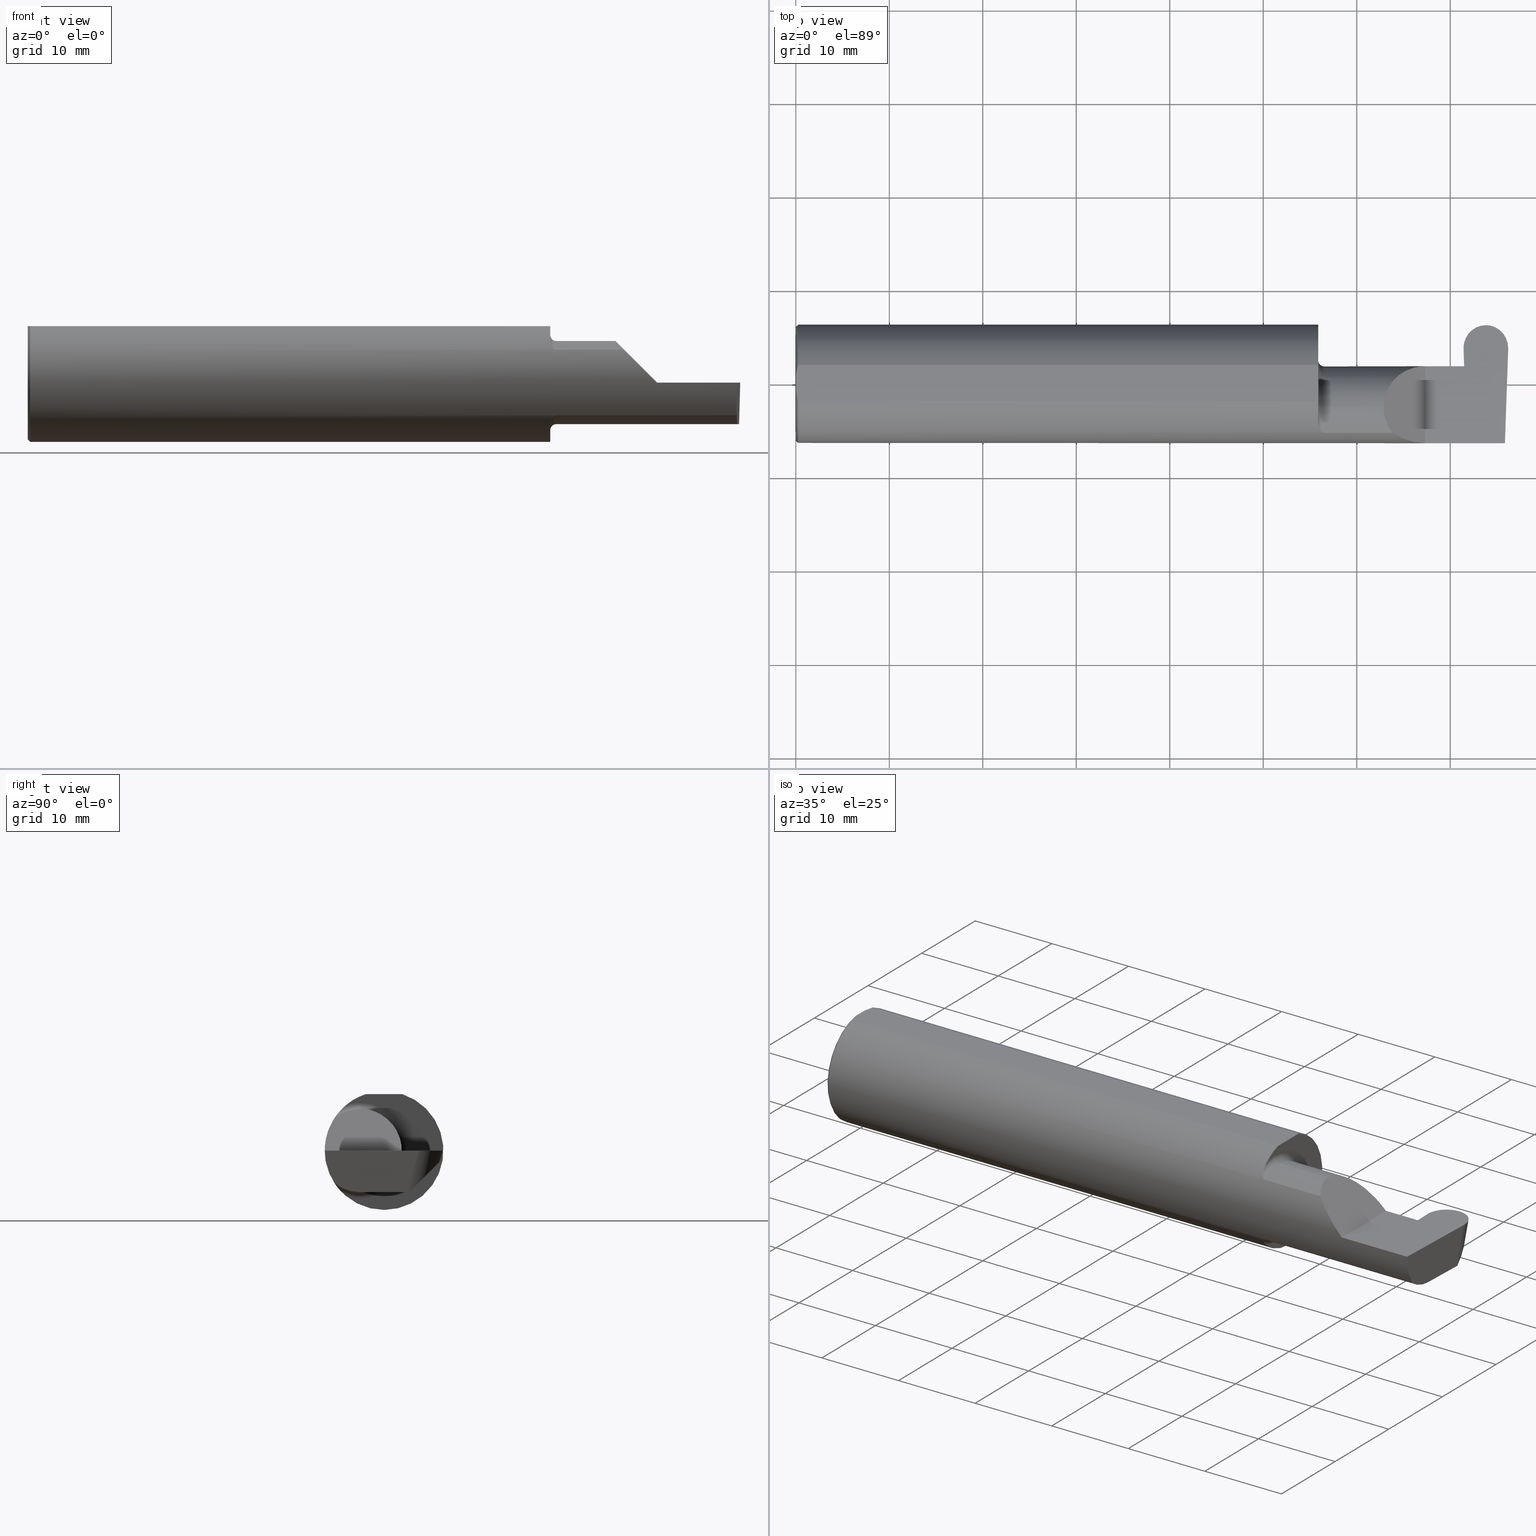
[diagram: canonical four-view strip — front | top / right | iso, engineering-drawing reading convention]
A machine part, canonical four-view strip (front | top / right | iso — engineering-drawing reading convention). The complete STEP part file that produces these views, byte-faithful:
ISO-10303-21;
HEADER;
FILE_DESCRIPTION (( 'STEP AP203' ),
    '1' );
FILE_NAME ('222503-GFR187-12.STEP',
    '2024-06-28T19:23:55',
    ( '' ),
    ( '' ),
    'SwSTEP 2.0',
    'SolidWorks 2024',
    '' );
FILE_SCHEMA (( 'CONFIG_CONTROL_DESIGN' ));
ENDSEC;

DATA;
#1 = ORIENTED_EDGE ( 'NONE', *, *, #147, .T. ) ;
#2 = CARTESIAN_POINT ( 'NONE',  ( 2.962893989228886138, 0.2471500000000001196, -6.982753567311735255E-18 ) ) ;
#3 = VERTEX_POINT ( 'NONE', #136 ) ;
#4 = VECTOR ( 'NONE', #398, 39.37007874015748854 ) ;
#5 = VECTOR ( 'NONE', #337, 39.37007874015748143 ) ;
#6 = VERTEX_POINT ( 'NONE', #245 ) ;
#7 = DIRECTION ( 'NONE',  ( -0.000000000000000000, 1.000000000000000000, 1.224646799147353207E-16 ) ) ;
#8 = VERTEX_POINT ( 'NONE', #56 ) ;
#9 = CARTESIAN_POINT ( 'NONE',  ( 2.995191146414767136, 0.1058243371481696476, -0.1750000000000001277 ) ) ;
#10 = EDGE_CURVE ( 'NONE', #150, #681, #128, .T. ) ;
#11 = CARTESIAN_POINT ( 'NONE',  ( 0.000000000000000000, 0.000000000000000000, 0.000000000000000000 ) ) ;
#12 = CARTESIAN_POINT ( 'NONE',  ( 2.225000000000000089, -0.1008500000000000368, 0.000000000000000000 ) ) ;
#13 = ORIENTED_EDGE ( 'NONE', *, *, #652, .F. ) ;
#14 = APPLICATION_CONTEXT ( 'configuration controlled 3d designs of mechanical parts and assemblies' ) ;
#15 = ADVANCED_FACE ( 'NONE', ( #750 ), #118, .F. ) ;
#16 = DIRECTION ( 'NONE',  ( 1.000000000000000000, 0.000000000000000000, 0.000000000000000000 ) ) ;
#17 = CARTESIAN_POINT ( 'NONE',  ( 0.000000000000000000, 0.2498499999999998500, 0.2378499999999998671 ) ) ;
#18 = ORIENTED_EDGE ( 'NONE', *, *, #184, .F. ) ;
#19 = DIRECTION ( 'NONE',  ( -1.000000000000000000, -0.000000000000000000, -0.000000000000000000 ) ) ;
#20 = CARTESIAN_POINT ( 'NONE',  ( 2.511704467739031887, -0.2080850024789288877, 0.1382955322609669413 ) ) ;
#21 = LINE ( 'NONE', #281, #155 ) ;
#22 = AXIS2_PLACEMENT_3D ( 'NONE', #440, #457, #271 ) ;
#23 = PRODUCT_DEFINITION ( 'UNKNOWN', '', #52, #629 ) ;
#24 = ORIENTED_EDGE ( 'NONE', *, *, #229, .F. ) ;
#25 = CC_DESIGN_APPROVAL ( #716, ( #105 ) ) ;
#26 = DIRECTION ( 'NONE',  ( 0.000000000000000000, 0.9659258262890682012, -0.2588190451025210725 ) ) ;
#27 = CARTESIAN_POINT ( 'NONE',  ( -0.002039370078740339320, 0.1058243371481696476, -0.1750000000000001277 ) ) ;
#28 = CARTESIAN_POINT ( 'NONE',  ( 2.816493473585234053, 0.1058243371481696476, -0.1750000000000001277 ) ) ;
#29 = ORIENTED_EDGE ( 'NONE', *, *, #774, .T. ) ;
#30 = EDGE_CURVE ( 'NONE', #6, #499, #134, .T. ) ;
#31 = PLANE ( 'NONE',  #194 ) ;
#32 = CARTESIAN_POINT ( 'NONE',  ( 2.814490853840988738, 0.07404339472834124691, -0.006107411922953761250 ) ) ;
#33 = DIRECTION ( 'NONE',  ( 0.000000000000000000, 0.000000000000000000, 1.000000000000000000 ) ) ;
#34 = B_SPLINE_CURVE_WITH_KNOTS ( 'NONE', 3,
 ( #173, #301, #112, #745 ),
 .UNSPECIFIED., .F., .F.,
 ( 4, 4 ),
 ( 0.01593449416844770414, 0.01712021724825603733 ),
 .UNSPECIFIED. ) ;
#35 = EDGE_LOOP ( 'NONE', ( #618, #506, #206, #770 ) ) ;
#36 = DIRECTION ( 'NONE',  ( -0.7071067811865439090, 0.000000000000000000, -0.7071067811865511255 ) ) ;
#37 = CARTESIAN_POINT ( 'NONE',  ( 2.904576945698209567, 0.2276591781451734187, -0.07274073744348660830 ) ) ;
#38 = EDGE_LOOP ( 'NONE', ( #669, #323, #77, #786 ) ) ;
#39 = VECTOR ( 'NONE', #93, 39.37007874015748143 ) ;
#40 =( BOUNDED_CURVE ( )  B_SPLINE_CURVE ( 3, ( #784, #666, #772, #32 ),
 .UNSPECIFIED., .F., .F. ) 
 B_SPLINE_CURVE_WITH_KNOTS ( ( 4, 4 ),
 ( 3.159045946109736214, 4.694935687864654206 ),
 .UNSPECIFIED. ) 
 CURVE ( )  GEOMETRIC_REPRESENTATION_ITEM ( )  RATIONAL_B_SPLINE_CURVE ( ( 1.000000000000000000, 0.8128932002257887035, 0.8128932002257887035, 1.000000000000000000 ) ) 
 REPRESENTATION_ITEM ( '' )  );
#41 = AXIS2_PLACEMENT_3D ( 'NONE', #98, #289, #731 ) ;
#42 = EDGE_CURVE ( 'NONE', #433, #574, #50, .T. ) ;
#43 = FACE_OUTER_BOUND ( 'NONE', #804, .T. ) ;
#44 = ORIENTED_EDGE ( 'NONE', *, *, #549, .F. ) ;
#45 =( CONVERSION_BASED_UNIT ( 'INCH', #363 ) LENGTH_UNIT ( ) NAMED_UNIT ( #63 ) );
#46 = EDGE_CURVE ( 'NONE', #448, #178, #739, .T. ) ;
#47 = ORIENTED_EDGE ( 'NONE', *, *, #335, .T. ) ;
#48 = DIRECTION ( 'NONE',  ( -0.03489949670249512664, -0.9993908270190959842, 0.000000000000000000 ) ) ;
#49 = APPROVAL ( #166, 'UNSPECIFIED' ) ;
#50 = CIRCLE ( 'NONE', #813, 0.1750000000000000167 ) ;
#51 = VECTOR ( 'NONE', #525, 39.37007874015748143 ) ;
#52 = PRODUCT_DEFINITION_FORMATION_WITH_SPECIFIED_SOURCE ( 'ANY', '', #170, .NOT_KNOWN. ) ;
#53 = DIRECTION ( 'NONE',  ( 0.000000000000000000, 0.000000000000000000, -1.000000000000000000 ) ) ;
#54 = VERTEX_POINT ( 'NONE', #388 ) ;
#55 = FACE_OUTER_BOUND ( 'NONE', #600, .T. ) ;
#56 = CARTESIAN_POINT ( 'NONE',  ( 2.905842309999999706, 0.2348220781727736184, -0.04600225897539471365 ) ) ;
#57 = ORIENTED_EDGE ( 'NONE', *, *, #73, .T. ) ;
#58 = VECTOR ( 'NONE', #221, 39.37007874015748143 ) ;
#59 = APPROVAL_ROLE ( '' ) ;
#60 = ADVANCED_FACE ( 'NONE', ( #639 ), #579, .T. ) ;
#61 = DIRECTION ( 'NONE',  ( 0.000000000000000000, 0.000000000000000000, 1.000000000000000000 ) ) ;
#62 = CARTESIAN_POINT ( 'NONE',  ( 2.200000000000000178, -0.1008500000000000091, 0.000000000000000000 ) ) ;
#63 = DIMENSIONAL_EXPONENTS ( 1.000000000000000000, 0.000000000000000000, 0.000000000000000000, 0.000000000000000000, 0.000000000000000000, 0.000000000000000000, 0.000000000000000000 ) ;
#64 = EDGE_LOOP ( 'NONE', ( #351, #57, #678, #29 ) ) ;
#65 = CARTESIAN_POINT ( 'NONE',  ( 0.009999999999999856226, -0.07650098038587520299, 0.2378499999999998671 ) ) ;
#66 = CARTESIAN_POINT ( 'NONE',  ( 2.200000000000000178, 0.07650098038587520299, 0.2378499999999998671 ) ) ;
#67 = EDGE_LOOP ( 'NONE', ( #200, #318, #704, #120, #701, #733 ) ) ;
#68 = B_SPLINE_CURVE_WITH_KNOTS ( 'NONE', 3,
 ( #534, #74, #391, #203, #396, #348, #767, #783, #334, #142, #529, #455, #86, #588 ),
 .UNSPECIFIED., .F., .F.,
 ( 4, 2, 2, 2, 2, 2, 4 ),
 ( 0.0003834465838148164922, 0.0008781406165086602222, 0.001372834649202503898, 0.001867528681896347791, 0.002114875698243273532, 0.002238549206416744208, 0.002362222714590215319 ),
 .UNSPECIFIED. ) ;
#69 = PERSON_AND_ORGANIZATION ( #562, #461 ) ;
#70 = CARTESIAN_POINT ( 'NONE',  ( -0.002039370078740339320, 0.2471499999999999808, 0.000000000000000000 ) ) ;
#71 = CARTESIAN_POINT ( 'NONE',  ( 0.009999999999999856226, 0.07650098038587520299, 0.2378499999999998671 ) ) ;
#72 = ORIENTED_EDGE ( 'NONE', *, *, #199, .F. ) ;
#73 = EDGE_CURVE ( 'NONE', #188, #95, #571, .T. ) ;
#74 = CARTESIAN_POINT ( 'NONE',  ( 2.199999999999999734, -0.1665641037263009272, 0.1863429692936361681 ) ) ;
#75 = AXIS2_PLACEMENT_3D ( 'NONE', #781, #472, #33 ) ;
#76 = CARTESIAN_POINT ( 'NONE',  ( 2.848790630771113275, 0.2471500000000001751, 1.845438088445658575E-17 ) ) ;
#77 = ORIENTED_EDGE ( 'NONE', *, *, #121, .T. ) ;
#78 = EDGE_CURVE ( 'NONE', #808, #375, #443, .T. ) ;
#79 = CARTESIAN_POINT ( 'NONE',  ( 0.009999999999999856226, 0.000000000000000000, 0.000000000000000000 ) ) ;
#80 = LINE ( 'NONE', #17, #5 ) ;
#81 = VERTEX_POINT ( 'NONE', #585 ) ;
#82 = CARTESIAN_POINT ( 'NONE',  ( 2.811836707554793424, 0.1469935636673020407, 0.000000000000000000 ) ) ;
#83 = DIRECTION ( 'NONE',  ( 0.000000000000000000, 0.000000000000000000, -1.000000000000000000 ) ) ;
#84 = FACE_OUTER_BOUND ( 'NONE', #424, .T. ) ;
#85 = ORIENTED_EDGE ( 'NONE', *, *, #422, .T. ) ;
#86 = CARTESIAN_POINT ( 'NONE',  ( 2.223329956043142097, -0.2080850024798589493, 0.1382955322595675884 ) ) ;
#87 = CARTESIAN_POINT ( 'NONE',  ( 0.000000000000000000, 0.000000000000000000, 0.000000000000000000 ) ) ;
#88 = CARTESIAN_POINT ( 'NONE',  ( 2.816451678931664482, 0.1039173297714279937, -0.1750000000000001554 ) ) ;
#89 = EDGE_CURVE ( 'NONE', #387, #6, #660, .T. ) ;
#90 = AXIS2_PLACEMENT_3D ( 'NONE', #540, #531, #159 ) ;
#91 = ORIENTED_EDGE ( 'NONE', *, *, #42, .T. ) ;
#92 = DIRECTION ( 'NONE',  ( 0.02590004391968260891, 0.2587322210431824421, 0.9656017944882975268 ) ) ;
#93 = DIRECTION ( 'NONE',  ( 1.000000000000000000, -0.000000000000000000, -0.000000000000000000 ) ) ;
#94 = DIRECTION ( 'NONE',  ( 0.000000000000000000, 0.000000000000000000, 1.000000000000000000 ) ) ;
#95 = VERTEX_POINT ( 'NONE', #143 ) ;
#96 = CARTESIAN_POINT ( 'NONE',  ( 2.985989829834099218, -0.2498499999999999888, 0.000000000000000000 ) ) ;
#97 = CARTESIAN_POINT ( 'NONE',  ( 2.200000000000000178, -0.1008500000000000091, -0.1999999999999999833 ) ) ;
#98 = CARTESIAN_POINT ( 'NONE',  ( 2.811741978320692059, 0.1497062540083303195, 0.000000000000000000 ) ) ;
#99 = ORIENTED_EDGE ( 'NONE', *, *, #314, .F. ) ;
#100 = ADVANCED_FACE ( 'NONE', ( #530 ), #656, .F. ) ;
#101 = EDGE_CURVE ( 'NONE', #714, #220, #456, .T. ) ;
#102 = CARTESIAN_POINT ( 'NONE',  ( 2.208176740666625726, -0.1972027065478072771, -0.1535263573771914747 ) ) ;
#103 = ORIENTED_EDGE ( 'NONE', *, *, #573, .F. ) ;
#104 = VECTOR ( 'NONE', #251, 39.37007874015748143 ) ;
#105 = SECURITY_CLASSIFICATION ( '', '', #254 ) ;
#106 = PLANE ( 'NONE',  #776 ) ;
#107 = CARTESIAN_POINT ( 'NONE',  ( 2.214302603425052141, -0.2041009206016212441, -0.1441313430770040926 ) ) ;
#108 = CARTESIAN_POINT ( 'NONE',  ( 3.501298404146671484, 0.2498499999999998500, 0.2378499999999998671 ) ) ;
#109 = CARTESIAN_POINT ( 'NONE',  ( 2.206147634408388569, -0.1932733126899460752, -0.1584637047788198805 ) ) ;
#110 = ORIENTED_EDGE ( 'NONE', *, *, #822, .F. ) ;
#111 = PLANE ( 'NONE',  #115 ) ;
#112 = CARTESIAN_POINT ( 'NONE',  ( 0.005466242398876384675, 0.06169385855649840017, 0.2378499999999998671 ) ) ;
#113 = PLANE ( 'NONE',  #814 ) ;
#114 = ADVANCED_FACE ( 'NONE', ( #780 ), #631, .T. ) ;
#115 = AXIS2_PLACEMENT_3D ( 'NONE', #415, #809, #48 ) ;
#116 = VERTEX_POINT ( 'NONE', #403 ) ;
#117 = CARTESIAN_POINT ( 'NONE',  ( 0.000000000000000000, 0.000000000000000000, 0.000000000000000000 ) ) ;
#118 = PLANE ( 'NONE',  #381 ) ;
#119 = DIRECTION ( 'NONE',  ( 0.000000000000000000, 0.000000000000000000, 1.000000000000000000 ) ) ;
#120 = ORIENTED_EDGE ( 'NONE', *, *, #298, .F. ) ;
#121 = EDGE_CURVE ( 'NONE', #418, #95, #610, .T. ) ;
#122 = CARTESIAN_POINT ( 'NONE',  ( 0.005459900170181723050, -0.06167314502012866823, 0.2378499999999998671 ) ) ;
#123 = FACE_OUTER_BOUND ( 'NONE', #720, .T. ) ;
#124 = ORIENTED_EDGE ( 'NONE', *, *, #147, .F. ) ;
#125 = VECTOR ( 'NONE', #757, 39.37007874015748143 ) ;
#126 = LINE ( 'NONE', #193, #671 ) ;
#127 = AXIS2_PLACEMENT_3D ( 'NONE', #146, #597, #771 ) ;
#128 = B_SPLINE_CURVE_WITH_KNOTS ( 'NONE', 3,
 ( #65, #122, #690, #636 ),
 .UNSPECIFIED., .F., .F.,
 ( 4, 4 ),
 ( 0.01317593029100230795, 0.01435802289191462008 ),
 .UNSPECIFIED. ) ;
#129 = B_SPLINE_CURVE_WITH_KNOTS ( 'NONE', 3,
 ( #313, #560, #758, #394 ),
 .UNSPECIFIED., .F., .F.,
 ( 4, 4 ),
 ( 0.000000000000000000, 1.000000000000000000 ),
 .UNSPECIFIED. ) ;
#130 = ORIENTED_EDGE ( 'NONE', *, *, #46, .F. ) ;
#131 = CARTESIAN_POINT ( 'NONE',  ( 2.905156571574672331, 0.2471499999999999808, 0.000000000000000000 ) ) ;
#132 = EDGE_LOOP ( 'NONE', ( #268, #464, #164, #541, #272, #226, #99, #124, #296 ) ) ;
#133 = APPROVAL ( #495, 'UNSPECIFIED' ) ;
#134 = LINE ( 'NONE', #259, #305 ) ;
#135 = DIRECTION ( 'NONE',  ( 0.000000000000000000, 0.000000000000000000, 1.000000000000000000 ) ) ;
#136 = CARTESIAN_POINT ( 'NONE',  ( 2.905156571574672331, 0.2471499999999999808, 0.000000000000000000 ) ) ;
#137 = CARTESIAN_POINT ( 'NONE',  ( 2.999847912445206877, 0.1469935636673019019, 0.000000000000000000 ) ) ;
#138 = VECTOR ( 'NONE', #700, 39.37007874015748143 ) ;
#139 = DIRECTION ( 'NONE',  ( -0.000000000000000000, 1.000000000000000000, -0.000000000000000000 ) ) ;
#140 = CARTESIAN_POINT ( 'NONE',  ( 2.225000000000000089, -0.1008500000000000091, 0.000000000000000000 ) ) ;
#141 = EDGE_LOOP ( 'NONE', ( #18, #437, #532, #604 ) ) ;
#142 = CARTESIAN_POINT ( 'NONE',  ( 2.217647060162628581, -0.2062109266231181848, 0.1410799729252291412 ) ) ;
#143 = CARTESIAN_POINT ( 'NONE',  ( 2.225000000000000089, -0.1008500000000000368, 0.1750000000000000167 ) ) ;
#144 = CYLINDRICAL_SURFACE ( 'NONE', #319, 0.09399999999999998634 ) ;
#145 = ORIENTED_EDGE ( 'NONE', *, *, #229, .T. ) ;
#146 = CARTESIAN_POINT ( 'NONE',  ( 2.818543965966616494, -2.751416465448401016, -0.1810926276730670248 ) ) ;
#147 = EDGE_CURVE ( 'NONE', #383, #276, #598, .T. ) ;
#148 = DIRECTION ( 'NONE',  ( -1.000000000000000000, 0.000000000000000000, 1.224646799147351975E-16 ) ) ;
#149 = CARTESIAN_POINT ( 'NONE',  ( 2.814380460850576249, 0.07414999999999977165, 0.000000000000000000 ) ) ;
#150 = VERTEX_POINT ( 'NONE', #462 ) ;
#151 = CARTESIAN_POINT ( 'NONE',  ( 2.959374149763076556, 0.2343807619371274797, -0.04644357521104084535 ) ) ;
#152 = VECTOR ( 'NONE', #139, 39.37007874015748143 ) ;
#153 = CARTESIAN_POINT ( 'NONE',  ( 2.200000000000000178, 0.000000000000000000, 0.000000000000000000 ) ) ;
#154 = CARTESIAN_POINT ( 'NONE',  ( 2.218863362722770294, -0.2068301641248770362, -0.1401678546132360537 ) ) ;
#155 = VECTOR ( 'NONE', #468, 39.37007874015748143 ) ;
#156 = VERTEX_POINT ( 'NONE', #280 ) ;
#157 = CARTESIAN_POINT ( 'NONE',  ( 3.402190948718818664, -0.1008500000000001340, -0.1750000000000000722 ) ) ;
#158 = CARTESIAN_POINT ( 'NONE',  ( 2.995191146414767136, 0.1058243371481696476, -0.1750000000000001277 ) ) ;
#159 = DIRECTION ( 'NONE',  ( 0.000000000000000000, 0.000000000000000000, -1.000000000000000000 ) ) ;
#160 = ORIENTED_EDGE ( 'NONE', *, *, #641, .T. ) ;
#161 = EDGE_CURVE ( 'NONE', #150, #54, #262, .T. ) ;
#162 = DIRECTION ( 'NONE',  ( 1.000000000000000000, -0.000000000000000000, -0.000000000000000000 ) ) ;
#163 = APPLICATION_PROTOCOL_DEFINITION ( 'international standard', 'config_control_design', 1994, #14 ) ;
#164 = ORIENTED_EDGE ( 'NONE', *, *, #78, .F. ) ;
#165 = PLANE ( 'NONE',  #207 ) ;
#166 = APPROVAL_STATUS ( 'not_yet_approved' ) ;
#167 = AXIS2_PLACEMENT_3D ( 'NONE', #502, #633, #61 ) ;
#168 = VECTOR ( 'NONE', #599, 39.37007874015748854 ) ;
#169 =( BOUNDED_CURVE ( )  B_SPLINE_CURVE ( 3, ( #353, #751, #605, #687 ),
 .UNSPECIFIED., .F., .F. ) 
 B_SPLINE_CURVE_WITH_KNOTS ( ( 4, 4 ),
 ( 4.586414956270678189, 4.645220385064936508 ),
 .UNSPECIFIED. ) 
 CURVE ( )  GEOMETRIC_REPRESENTATION_ITEM ( )  RATIONAL_B_SPLINE_CURVE ( ( 1.000000000000000000, 0.9997118475557109640, 0.9997118475557109640, 1.000000000000000000 ) ) 
 REPRESENTATION_ITEM ( '' )  );
#170 = PRODUCT ( '222503-GFR187-12', '222503-GFR187-12', '', ( #232 ) ) ;
#171 = DATE_AND_TIME ( #484, #249 ) ;
#172 = CARTESIAN_POINT ( 'NONE',  ( 2.650000000000000355, 0.07414999999999999369, 9.797174393178813824E-17 ) ) ;
#173 = CARTESIAN_POINT ( 'NONE',  ( 0.000000000000000000, 0.03090954545120574992, 0.2378499999999998671 ) ) ;
#174 = COORDINATED_UNIVERSAL_TIME_OFFSET ( 8, 0, .BEHIND. ) ;
#175 = VERTEX_POINT ( 'NONE', #594 ) ;
#176 = CARTESIAN_POINT ( 'NONE',  ( -0.002039370078740339320, 0.2348243371481683328, -0.04599999999999999922 ) ) ;
#177 = DATE_AND_TIME ( #746, #360 ) ;
#178 = VERTEX_POINT ( 'NONE', #20 ) ;
#179 = CARTESIAN_POINT ( 'NONE',  ( 2.200000000000000178, -0.1008500000000000368, 0.1999999999999999833 ) ) ;
#180 = AXIS2_PLACEMENT_3D ( 'NONE', #214, #341, #730 ) ;
#181 =( GEOMETRIC_REPRESENTATION_CONTEXT ( 3 ) GLOBAL_UNCERTAINTY_ASSIGNED_CONTEXT ( ( #382 ) ) GLOBAL_UNIT_ASSIGNED_CONTEXT ( ( #45, #309, #429 ) ) REPRESENTATION_CONTEXT ( 'NONE', 'WORKASPACE' ) );
#182 = LOCAL_TIME ( 12, 23, 55.00000000000000000, #575 ) ;
#183 = ORIENTED_EDGE ( 'NONE', *, *, #556, .F. ) ;
#184 = EDGE_CURVE ( 'NONE', #116, #681, #791, .T. ) ;
#185 = SHAPE_DEFINITION_REPRESENTATION ( #238, #587 ) ;
#186 = EDGE_LOOP ( 'NONE', ( #72, #285, #811, #324, #624, #160, #706, #450 ) ) ;
#187 = FACE_OUTER_BOUND ( 'NONE', #537, .T. ) ;
#188 = VERTEX_POINT ( 'NONE', #602 ) ;
#189 = DIRECTION ( 'NONE',  ( 1.000000000000000000, -0.000000000000000000, -0.000000000000000000 ) ) ;
#190 = ORIENTED_EDGE ( 'NONE', *, *, #199, .T. ) ;
#191 = CYLINDRICAL_SURFACE ( 'NONE', #683, 0.2498499999999999888 ) ;
#192 = ORIENTED_EDGE ( 'NONE', *, *, #470, .T. ) ;
#193 = CARTESIAN_POINT ( 'NONE',  ( 0.000000000000000000, 0.000000000000000000, -0.2398500000000001742 ) ) ;
#194 = AXIS2_PLACEMENT_3D ( 'NONE', #738, #287, #53 ) ;
#195 = VERTEX_POINT ( 'NONE', #283 ) ;
#196 = DIRECTION ( 'NONE',  ( 0.000000000000000000, 0.000000000000000000, 1.000000000000000000 ) ) ;
#197 = ORIENTED_EDGE ( 'NONE', *, *, #335, .F. ) ;
#198 = DATE_AND_TIME ( #570, #182 ) ;
#199 = EDGE_CURVE ( 'NONE', #387, #499, #40, .T. ) ;
#200 = ORIENTED_EDGE ( 'NONE', *, *, #551, .T. ) ;
#201 = CARTESIAN_POINT ( 'NONE',  ( 2.988640834071240260, -0.08640851177310861220, -0.1750000000000000722 ) ) ;
#202 = VERTEX_POINT ( 'NONE', #97 ) ;
#203 = CARTESIAN_POINT ( 'NONE',  ( 2.201849548162864156, -0.1805300287242673496, 0.1728462070311780341 ) ) ;
#204 = DIRECTION ( 'NONE',  ( 0.000000000000000000, 0.000000000000000000, -1.000000000000000000 ) ) ;
#205 = CARTESIAN_POINT ( 'NONE',  ( 2.200000000000000178, -0.1616050818046604054, -0.1905487340154980447 ) ) ;
#206 = ORIENTED_EDGE ( 'NONE', *, *, #340, .T. ) ;
#207 = AXIS2_PLACEMENT_3D ( 'NONE', #607, #299, #423 ) ;
#208 = AXIS2_PLACEMENT_3D ( 'NONE', #329, #516, #508 ) ;
#209 = DIRECTION ( 'NONE',  ( -0.03489949670249513358, -0.9993908270190959842, 0.000000000000000000 ) ) ;
#210 = LINE ( 'NONE', #546, #278 ) ;
#211 = ORIENTED_EDGE ( 'NONE', *, *, #822, .T. ) ;
#212 = EDGE_CURVE ( 'NONE', #448, #454, #535, .T. ) ;
#213 = CYLINDRICAL_SURFACE ( 'NONE', #544, 0.1750000000000000444 ) ;
#214 = CARTESIAN_POINT ( 'NONE',  ( 0.009999999999999856226, 0.000000000000000000, 0.000000000000000000 ) ) ;
#215 = CARTESIAN_POINT ( 'NONE',  ( 2.200000000000000178, -0.07650098038587527238, 0.2378499999999998671 ) ) ;
#216 = ORIENTED_EDGE ( 'NONE', *, *, #303, .T. ) ;
#217 = CARTESIAN_POINT ( 'NONE',  ( 2.487690731615565642, -0.1771157075472508391, 0.1623092683844331863 ) ) ;
#218 = CARTESIAN_POINT ( 'NONE',  ( 2.650000000000000355, -0.2500000000000000555, 4.286263797015729199E-17 ) ) ;
#219 = DIRECTION ( 'NONE',  ( 0.000000000000000000, 0.9659258262890682012, -0.2588190451025210725 ) ) ;
#220 = VERTEX_POINT ( 'NONE', #158 ) ;
#221 = DIRECTION ( 'NONE',  ( -1.000000000000000000, -0.000000000000000000, -0.000000000000000000 ) ) ;
#222 = EDGE_CURVE ( 'NONE', #375, #156, #711, .T. ) ;
#223 = CIRCLE ( 'NONE', #670, 0.2498499999999999888 ) ;
#224 = DIRECTION ( 'NONE',  ( 0.000000000000000000, 0.000000000000000000, -1.000000000000000000 ) ) ;
#225 = CONICAL_SURFACE ( 'NONE', #612, 0.2398500000000001742, 0.7853981633974466137 ) ;
#226 = ORIENTED_EDGE ( 'NONE', *, *, #212, .F. ) ;
#227 =( BOUNDED_CURVE ( )  B_SPLINE_CURVE ( 3, ( #137, #695, #2, #260 ),
 .UNSPECIFIED., .F., .F. ) 
 B_SPLINE_CURVE_WITH_KNOTS ( ( 4, 4 ),
 ( 1.637964922114649946, 3.237953570749842580 ),
 .UNSPECIFIED. ) 
 CURVE ( )  GEOMETRIC_REPRESENTATION_ITEM ( )  RATIONAL_B_SPLINE_CURVE ( ( 1.000000000000000000, 0.7978071872141906384, 0.7978071872141906384, 1.000000000000000000 ) ) 
 REPRESENTATION_ITEM ( '' )  );
#228 = CARTESIAN_POINT ( 'NONE',  ( 0.000000000000000000, -0.03090954545120560767, 0.2378499999999998671 ) ) ;
#229 = EDGE_CURVE ( 'NONE', #766, #596, #459, .T. ) ;
#230 = ORIENTED_EDGE ( 'NONE', *, *, #573, .T. ) ;
#231 = EDGE_CURVE ( 'NONE', #499, #808, #273, .T. ) ;
#232 = MECHANICAL_CONTEXT ( 'NONE', #762, 'mechanical' ) ;
#233 = ORIENTED_EDGE ( 'NONE', *, *, #652, .T. ) ;
#234 = FACE_OUTER_BOUND ( 'NONE', #421, .T. ) ;
#235 = CIRCLE ( 'NONE', #295, 0.1999999999999999833 ) ;
#236 = APPROVAL_PERSON_ORGANIZATION ( #803, #133, #491 ) ;
#237 = EDGE_CURVE ( 'NONE', #95, #433, #475, .T. ) ;
#238 = PRODUCT_DEFINITION_SHAPE ( 'NONE', 'NONE',  #23 ) ;
#239 = ORIENTED_EDGE ( 'NONE', *, *, #78, .T. ) ;
#240 = CARTESIAN_POINT ( 'NONE',  ( 2.212579853086618975, -0.2024300470081734638, -0.1464774911482685793 ) ) ;
#241 = DIRECTION ( 'NONE',  ( -1.000000000000000000, -0.000000000000000000, -0.000000000000000000 ) ) ;
#242 = EDGE_CURVE ( 'NONE', #54, #578, #223, .T. ) ;
#243 = APPLICATION_PROTOCOL_DEFINITION ( 'international standard', 'config_control_design', 1994, #762 ) ;
#244 = EDGE_CURVE ( 'NONE', #642, #627, #292, .T. ) ;
#245 = CARTESIAN_POINT ( 'NONE',  ( 2.817543629401487948, 0.07109536363756167876, -0.1750000000000000722 ) ) ;
#246 = CARTESIAN_POINT ( 'NONE',  ( 2.225000000000000089, -0.1008500000000000091, -0.1750000000000000167 ) ) ;
#247 = AXIS2_PLACEMENT_3D ( 'NONE', #87, #349, #204 ) ;
#248 = AXIS2_PLACEMENT_3D ( 'NONE', #176, #430, #623 ) ;
#249 = LOCAL_TIME ( 12, 23, 55.00000000000000000, #797 ) ;
#250 =( BOUNDED_CURVE ( )  B_SPLINE_CURVE ( 3, ( #406, #657, #88, #28 ),
 .UNSPECIFIED., .F., .F. ) 
 B_SPLINE_CURVE_WITH_KNOTS ( ( 4, 4 ),
 ( 1.637964922114649946, 1.696770350908906488 ),
 .UNSPECIFIED. ) 
 CURVE ( )  GEOMETRIC_REPRESENTATION_ITEM ( )  RATIONAL_B_SPLINE_CURVE ( ( 1.000000000000000000, 0.9997118475557110751, 0.9997118475557110751, 1.000000000000000000 ) ) 
 REPRESENTATION_ITEM ( '' )  );
#251 = DIRECTION ( 'NONE',  ( 1.000000000000000000, 0.000000000000000000, 0.000000000000000000 ) ) ;
#252 = ADVANCED_FACE ( 'NONE', ( #43 ), #165, .T. ) ;
#253 = ORIENTED_EDGE ( 'NONE', *, *, #291, .T. ) ;
#254 = SECURITY_CLASSIFICATION_LEVEL ( 'unclassified' ) ;
#255 = CARTESIAN_POINT ( 'NONE',  ( 2.200000000000000178, -0.1008500000000000091, 0.1750000000000000444 ) ) ;
#256 = CARTESIAN_POINT ( 'NONE',  ( 2.824252866266283135, -0.1210320425578235159, -0.1750000000000000722 ) ) ;
#257 = EDGE_LOOP ( 'NONE', ( #44, #306, #91, #338 ) ) ;
#258 = PERSON_AND_ORGANIZATION_ROLE ( 'design_supplier' ) ;
#259 = CARTESIAN_POINT ( 'NONE',  ( 2.814380460850576249, 0.07414999999999977165, 9.645561665750316631E-21 ) ) ;
#260 = CARTESIAN_POINT ( 'NONE',  ( 2.906528048425327526, 0.2471499999999999808, 0.000000000000000000 ) ) ;
#261 = ORIENTED_EDGE ( 'NONE', *, *, #184, .T. ) ;
#262 = CIRCLE ( 'NONE', #180, 0.2498499999999999888 ) ;
#263 = LINE ( 'NONE', #710, #265 ) ;
#264 = EDGE_CURVE ( 'NONE', #387, #433, #293, .T. ) ;
#265 = VECTOR ( 'NONE', #92, 39.37007874015748854 ) ;
#266 = LOCAL_TIME ( 12, 23, 55.00000000000000000, #563 ) ;
#267 = ORIENTED_EDGE ( 'NONE', *, *, #788, .T. ) ;
#268 = ORIENTED_EDGE ( 'NONE', *, *, #291, .F. ) ;
#269 = FACE_OUTER_BOUND ( 'NONE', #507, .T. ) ;
#270 = DIRECTION ( 'NONE',  ( 0.000000000000000000, 0.000000000000000000, -1.000000000000000000 ) ) ;
#271 = DIRECTION ( 'NONE',  ( 0.000000000000000000, -0.01745240643728358451, -0.9998476951563912696 ) ) ;
#272 = ORIENTED_EDGE ( 'NONE', *, *, #641, .F. ) ;
#273 = LINE ( 'NONE', #477, #4 ) ;
#274 = DIRECTION ( 'NONE',  ( 0.000000000000000000, 0.000000000000000000, 1.000000000000000000 ) ) ;
#275 = ADVANCED_FACE ( 'NONE', ( #426 ), #106, .T. ) ;
#276 = VERTEX_POINT ( 'NONE', #615 ) ;
#277 = FACE_OUTER_BOUND ( 'NONE', #186, .T. ) ;
#278 = VECTOR ( 'NONE', #649, 39.37007874015748854 ) ;
#279 = APPROVAL_PERSON_ORGANIZATION ( #557, #49, #302 ) ;
#280 = CARTESIAN_POINT ( 'NONE',  ( 2.816530679450678587, 0.1001024549918554940, -0.1750000000000001277 ) ) ;
#281 = CARTESIAN_POINT ( 'NONE',  ( 2.200000000000000178, 0.07404339472834127467, -0.006107411922952042140 ) ) ;
#282 = EDGE_LOOP ( 'NONE', ( #458, #233, #261 ) ) ;
#283 = CARTESIAN_POINT ( 'NONE',  ( 2.985032866776429650, -0.2080850024789289987, -0.1382955322609668025 ) ) ;
#284 = CARTESIAN_POINT ( 'NONE',  ( 2.225000000000000089, -0.2080850024789288599, -0.1382955322609668025 ) ) ;
#285 = ORIENTED_EDGE ( 'NONE', *, *, #264, .T. ) ;
#286 = CC_DESIGN_DATE_AND_TIME_ASSIGNMENT ( #304, #554, ( #23 ) ) ;
#287 = DIRECTION ( 'NONE',  ( 1.000000000000000000, 0.000000000000000000, 0.000000000000000000 ) ) ;
#288 = CARTESIAN_POINT ( 'NONE',  ( 2.225000000000000089, -0.1008500000000000091, 0.000000000000000000 ) ) ;
#289 = DIRECTION ( 'NONE',  ( 0.9992386149554828290, 0.03489418134010620343, 0.01745240643728358451 ) ) ;
#290 = VERTEX_POINT ( 'NONE', #794 ) ;
#291 = EDGE_CURVE ( 'NONE', #3, #175, #734, .T. ) ;
#292 = CIRCLE ( 'NONE', #561, 0.2498499999999999888 ) ;
#293 = LINE ( 'NONE', #673, #317 ) ;
#294 = CARTESIAN_POINT ( 'NONE',  ( 2.547487373415290968, 0.07415000000000000757, 0.1025126265847084162 ) ) ;
#295 = AXIS2_PLACEMENT_3D ( 'NONE', #682, #241, #665 ) ;
#296 = ORIENTED_EDGE ( 'NONE', *, *, #584, .T. ) ;
#297 = CC_DESIGN_APPROVAL ( #49, ( #23 ) ) ;
#298 = EDGE_CURVE ( 'NONE', #609, #578, #34, .T. ) ;
#299 = DIRECTION ( 'NONE',  ( 1.000000000000000000, 0.000000000000000000, 0.000000000000000000 ) ) ;
#300 = CARTESIAN_POINT ( 'NONE',  ( 2.852310470236923301, 0.2343807619371273965, -0.04644357521104090780 ) ) ;
#301 = CARTESIAN_POINT ( 'NONE',  ( 0.002005502345409059580, 0.04647171987093979412, 0.2378499999999998671 ) ) ;
#302 = APPROVAL_ROLE ( '' ) ;
#303 = EDGE_CURVE ( 'NONE', #81, #808, #419, .T. ) ;
#304 = DATE_AND_TIME ( #807, #685 ) ;
#305 = VECTOR ( 'NONE', #566, 39.37007874015748854 ) ;
#306 = ORIENTED_EDGE ( 'NONE', *, *, #564, .T. ) ;
#307 = CARTESIAN_POINT ( 'NONE',  ( 2.814490853840988738, 0.07404339472834124691, -0.006107411922953761250 ) ) ;
#308 = AXIS2_PLACEMENT_3D ( 'NONE', #536, #399, #595 ) ;
#309 =( NAMED_UNIT ( * ) PLANE_ANGLE_UNIT ( ) SI_UNIT ( $, .RADIAN. ) );
#310 = ORIENTED_EDGE ( 'NONE', *, *, #244, .T. ) ;
#311 = CARTESIAN_POINT ( 'NONE',  ( 2.905842309999999706, 0.2348220781727736184, -0.04600225897539471365 ) ) ;
#312 = EDGE_CURVE ( 'NONE', #116, #54, #126, .T. ) ;
#313 = CARTESIAN_POINT ( 'NONE',  ( 2.803232562456845933, 0.07404339472834127467, -0.006107411922952479290 ) ) ;
#314 = EDGE_CURVE ( 'NONE', #276, #448, #702, .T. ) ;
#315 = DIRECTION ( 'NONE',  ( 0.000000000000000000, -0.9659258262890682012, 0.2588190451025209615 ) ) ;
#316 = CARTESIAN_POINT ( 'NONE',  ( 2.905842309999999706, 0.2402997171823388067, -0.02556560352172764644 ) ) ;
#317 = VECTOR ( 'NONE', #621, 39.37007874015748143 ) ;
#318 = ORIENTED_EDGE ( 'NONE', *, *, #533, .T. ) ;
#319 = AXIS2_PLACEMENT_3D ( 'NONE', #346, #350, #219 ) ;
#320 = PERSON_AND_ORGANIZATION_ROLE ( 'creator' ) ;
#321 = ORIENTED_EDGE ( 'NONE', *, *, #549, .T. ) ;
#322 = DIRECTION ( 'NONE',  ( 0.000000000000000000, 0.000000000000000000, 1.000000000000000000 ) ) ;
#323 = ORIENTED_EDGE ( 'NONE', *, *, #485, .F. ) ;
#324 = ORIENTED_EDGE ( 'NONE', *, *, #73, .F. ) ;
#325 = LINE ( 'NONE', #453, #138 ) ;
#326 = EDGE_CURVE ( 'NONE', #178, #188, #374, .T. ) ;
#327 = ORIENTED_EDGE ( 'NONE', *, *, #626, .F. ) ;
#328 = CARTESIAN_POINT ( 'NONE',  ( 2.511704467739031887, -0.2080850024789288877, 0.1382955322609669413 ) ) ;
#329 = CARTESIAN_POINT ( 'NONE',  ( 3.402190948718818664, -0.1008500000000001340, -0.1750000000000000722 ) ) ;
#330 = ORIENTED_EDGE ( 'NONE', *, *, #42, .F. ) ;
#331 = CARTESIAN_POINT ( 'NONE',  ( 2.803232562456845933, 0.07404339472834127467, -0.006107411922952479290 ) ) ;
#332 = APPROVAL_PERSON_ORGANIZATION ( #761, #716, #59 ) ;
#333 = CARTESIAN_POINT ( 'NONE',  ( 2.200000000000000178, -0.1616050818046604054, 0.1905487340154980447 ) ) ;
#334 = CARTESIAN_POINT ( 'NONE',  ( 2.214343523383979662, -0.2041337200786083050, 0.1440846171672512943 ) ) ;
#335 = EDGE_CURVE ( 'NONE', #820, #383, #263, .T. ) ;
#336 = DIRECTION ( 'NONE',  ( 1.000000000000000000, 0.000000000000000000, 0.000000000000000000 ) ) ;
#337 = DIRECTION ( 'NONE',  ( -0.000000000000000000, 1.000000000000000000, -0.000000000000000000 ) ) ;
#338 = ORIENTED_EDGE ( 'NONE', *, *, #810, .T. ) ;
#339 = CARTESIAN_POINT ( 'NONE',  ( 2.905842309999999706, 0.2348220781727736184, -0.04600225897539471365 ) ) ;
#340 = EDGE_CURVE ( 'NONE', #596, #347, #68, .T. ) ;
#341 = DIRECTION ( 'NONE',  ( 1.000000000000000000, 0.000000000000000000, 0.000000000000000000 ) ) ;
#342 = CARTESIAN_POINT ( 'NONE',  ( 2.650000000000000355, 0.07414999999999999369, 9.797174393178813824E-17 ) ) ;
#343 = ORIENTED_EDGE ( 'NONE', *, *, #30, .F. ) ;
#344 = CIRCLE ( 'NONE', #90, 0.2398500000000001742 ) ;
#345 = DIRECTION ( 'NONE',  ( 0.000000000000000000, -1.000000000000000000, 0.000000000000000000 ) ) ;
#346 = CARTESIAN_POINT ( 'NONE',  ( 2.904576945698209567, 0.1368621504740009653, -0.04841174720384962965 ) ) ;
#347 = VERTEX_POINT ( 'NONE', #583 ) ;
#348 = CARTESIAN_POINT ( 'NONE',  ( 2.206159563508734767, -0.1933019864360848439, 0.1584298865564832959 ) ) ;
#349 = DIRECTION ( 'NONE',  ( 1.000000000000000000, 0.000000000000000000, 0.000000000000000000 ) ) ;
#350 = DIRECTION ( 'NONE',  ( -0.02590004391968260544, -0.2587322210431824976, -0.9656017944882975268 ) ) ;
#351 = ORIENTED_EDGE ( 'NONE', *, *, #326, .T. ) ;
#352 = EDGE_CURVE ( 'NONE', #8, #220, #823, .T. ) ;
#353 = CARTESIAN_POINT ( 'NONE',  ( 2.995191146414767136, 0.1058243371481696476, -0.1750000000000001277 ) ) ;
#354 = MANIFOLD_SOLID_BREP ( 'Radii', #486 ) ;
#355 = FACE_OUTER_BOUND ( 'NONE', #407, .T. ) ;
#356 = ORIENTED_EDGE ( 'NONE', *, *, #485, .T. ) ;
#357 = VECTOR ( 'NONE', #489, 39.37007874015748143 ) ;
#358 = DIRECTION ( 'NONE',  ( 1.000000000000000000, 0.000000000000000000, 0.000000000000000000 ) ) ;
#359 = VERTEX_POINT ( 'NONE', #331 ) ;
#360 = LOCAL_TIME ( 12, 23, 55.00000000000000000, #174 ) ;
#361 = ADVANCED_FACE ( 'NONE', ( #269 ), #518, .F. ) ;
#362 = DIRECTION ( 'NONE',  ( 0.000000000000000000, 0.000000000000000000, 1.000000000000000000 ) ) ;
#363 = LENGTH_MEASURE_WITH_UNIT ( LENGTH_MEASURE( 0.02539999999999999897 ), #622 );
#364 = CARTESIAN_POINT ( 'NONE',  ( 2.201385488563270432, -0.1808287530430326140, -0.1728790649396287904 ) ) ;
#365 = LINE ( 'NONE', #787, #58 ) ;
#366 = CARTESIAN_POINT ( 'NONE',  ( 2.200000000000000178, -0.1616050818046604054, -0.1905487340154980447 ) ) ;
#367 = ORIENTED_EDGE ( 'NONE', *, *, #806, .F. ) ;
#368 = FACE_OUTER_BOUND ( 'NONE', #282, .T. ) ;
#369 = CC_DESIGN_DATE_AND_TIME_ASSIGNMENT ( #378, #498, ( #105 ) ) ;
#370 = ADVANCED_FACE ( 'NONE', ( #523 ), #651, .T. ) ;
#371 = CARTESIAN_POINT ( 'NONE',  ( 2.905842309999999706, 0.2348220781727736184, -0.04600225897539471365 ) ) ;
#372 = ORIENTED_EDGE ( 'NONE', *, *, #526, .T. ) ;
#373 = CARTESIAN_POINT ( 'NONE',  ( 2.200000000000000178, -0.1008500000000000091, 0.000000000000000000 ) ) ;
#374 =( BOUNDED_CURVE ( )  B_SPLINE_CURVE ( 3, ( #775, #217, #647, #408 ),
 .UNSPECIFIED., .F., .F. ) 
 B_SPLINE_CURVE_WITH_KNOTS ( ( 4, 4 ),
 ( 5.623622464215682015, 6.283185307179586232 ),
 .UNSPECIFIED. ) 
 CURVE ( )  GEOMETRIC_REPRESENTATION_ITEM ( )  RATIONAL_B_SPLINE_CURVE ( ( 1.000000000000000000, 0.9640754331822832812, 0.9640754331822832812, 1.000000000000000000 ) ) 
 REPRESENTATION_ITEM ( '' )  );
#375 = VERTEX_POINT ( 'NONE', #82 ) ;
#376 = PLANE ( 'NONE',  #22 ) ;
#377 = ORIENTED_EDGE ( 'NONE', *, *, #326, .F. ) ;
#378 = DATE_AND_TIME ( #693, #266 ) ;
#379 = CARTESIAN_POINT ( 'NONE',  ( 2.650000000000000355, -0.2498499999999999610, 4.286263797015729199E-17 ) ) ;
#380 = PLANE ( 'NONE',  #208 ) ;
#381 = AXIS2_PLACEMENT_3D ( 'NONE', #70, #315, #439 ) ;
#382 = UNCERTAINTY_MEASURE_WITH_UNIT (LENGTH_MEASURE( 1.000000000000000082E-05 ), #45, 'distance_accuracy_value', 'NONE');
#383 = VERTEX_POINT ( 'NONE', #593 ) ;
#384 = AXIS2_PLACEMENT_3D ( 'NONE', #62, #769, #322 ) ;
#385 = ADVANCED_FACE ( 'NONE', ( #277 ), #213, .T. ) ;
#386 = ORIENTED_EDGE ( 'NONE', *, *, #244, .F. ) ;
#387 = VERTEX_POINT ( 'NONE', #812 ) ;
#388 = CARTESIAN_POINT ( 'NONE',  ( 0.009999999999999856226, 0.000000000000000000, -0.2498499999999999888 ) ) ;
#389 = DIRECTION ( 'NONE',  ( -0.03489949670249350294, 0.9993908270190959842, -1.222058880457094394E-16 ) ) ;
#390 = EDGE_LOOP ( 'NONE', ( #377, #130, #663, #686 ) ) ;
#391 = CARTESIAN_POINT ( 'NONE',  ( 2.200367168219774072, -0.1713400252854603567, 0.1819601557798506408 ) ) ;
#392 = APPROVAL_STATUS ( 'not_yet_approved' ) ;
#393 = CARTESIAN_POINT ( 'NONE',  ( 2.225000000000000089, -0.1008500000000000091, 0.000000000000000000 ) ) ;
#394 = CARTESIAN_POINT ( 'NONE',  ( 2.803339167728504666, 0.07414999999999977165, 0.000000000000000000 ) ) ;
#395 = CC_DESIGN_PERSON_AND_ORGANIZATION_ASSIGNMENT ( #674, #680, ( #170 ) ) ;
#396 = CARTESIAN_POINT ( 'NONE',  ( 2.202968662030529323, -0.1849684355203378150, 0.1680843977756268370 ) ) ;
#397 = AXIS2_PLACEMENT_3D ( 'NONE', #548, #420, #358 ) ;
#398 = DIRECTION ( 'NONE',  ( -0.01806954526206908107, 0.01744955702544859211, 0.9996844524616943506 ) ) ;
#399 = DIRECTION ( 'NONE',  ( -1.000000000000000000, -0.000000000000000000, -0.000000000000000000 ) ) ;
#400 = ORIENTED_EDGE ( 'NONE', *, *, #526, .F. ) ;
#401 = DIRECTION ( 'NONE',  ( 0.02590004391968218217, -0.2587322210431824976, -0.9656017944882975268 ) ) ;
#402 = ADVANCED_FACE ( 'NONE', ( #474 ), #113, .F. ) ;
#403 = CARTESIAN_POINT ( 'NONE',  ( 0.000000000000000000, 0.000000000000000000, -0.2398500000000001742 ) ) ;
#404 = CARTESIAN_POINT ( 'NONE',  ( 2.474999999999998757, 0.001662626584708354381, 0.1750000000000000167 ) ) ;
#405 = ORIENTED_EDGE ( 'NONE', *, *, #483, .F. ) ;
#406 = CARTESIAN_POINT ( 'NONE',  ( 2.816530679450678587, 0.1001024549918554940, -0.1750000000000001277 ) ) ;
#407 = EDGE_LOOP ( 'NONE', ( #759, #441, #510, #509, #735, #197 ) ) ;
#408 = CARTESIAN_POINT ( 'NONE',  ( 2.474999999999998757, -0.1008500000000000091, 0.1750000000000000444 ) ) ;
#409 = AXIS2_PLACEMENT_3D ( 'NONE', #153, #411, #224 ) ;
#410 = TOROIDAL_SURFACE ( 'NONE', #308, 0.1999999999999999833, 0.02499999999999994588 ) ;
#411 = DIRECTION ( 'NONE',  ( 1.000000000000000000, 0.000000000000000000, 0.000000000000000000 ) ) ;
#412 = PLANE ( 'NONE',  #41 ) ;
#413 = ADVANCED_FACE ( 'NONE', ( #368 ), #31, .F. ) ;
#414 = ORIENTED_EDGE ( 'NONE', *, *, #314, .T. ) ;
#415 = CARTESIAN_POINT ( 'NONE',  ( 2.999942641679308242, 0.1497062540083303195, 0.000000000000000000 ) ) ;
#416 = DIRECTION ( 'NONE',  ( -0.03489949670249350294, 0.9993908270190959842, -0.000000000000000000 ) ) ;
#417 = CYLINDRICAL_SURFACE ( 'NONE', #446, 0.1750000000000000444 ) ;
#418 = VERTEX_POINT ( 'NONE', #179 ) ;
#419 = LINE ( 'NONE', #493, #792 ) ;
#420 = DIRECTION ( 'NONE',  ( 0.000000000000000000, 0.000000000000000000, 1.000000000000000000 ) ) ;
#421 = EDGE_LOOP ( 'NONE', ( #511, #211, #547 ) ) ;
#422 = EDGE_CURVE ( 'NONE', #195, #574, #538, .T. ) ;
#423 = DIRECTION ( 'NONE',  ( 0.000000000000000000, 0.000000000000000000, -1.000000000000000000 ) ) ;
#424 = EDGE_LOOP ( 'NONE', ( #799, #479, #400, #85, #330 ) ) ;
#425 =( BOUNDED_CURVE ( )  B_SPLINE_CURVE ( 3, ( #550, #616, #300, #371 ),
 .UNSPECIFIED., .F., .F. ) 
 B_SPLINE_CURVE_WITH_KNOTS ( ( 4, 4 ),
 ( 1.615361716680477233, 3.150715186437225146 ),
 .UNSPECIFIED. ) 
 CURVE ( )  GEOMETRIC_REPRESENTATION_ITEM ( )  RATIONAL_B_SPLINE_CURVE ( ( 1.000000000000000000, 0.8130173582623207995, 0.8130173582623207995, 1.000000000000000000 ) ) 
 REPRESENTATION_ITEM ( '' )  );
#426 = FACE_OUTER_BOUND ( 'NONE', #67, .T. ) ;
#427 = APPROVAL_DATE_TIME ( #171, #49 ) ;
#428 = DIRECTION ( 'NONE',  ( -1.000000000000000000, -0.000000000000000000, -0.000000000000000000 ) ) ;
#429 =( NAMED_UNIT ( * ) SI_UNIT ( $, .STERADIAN. ) SOLID_ANGLE_UNIT ( ) );
#430 = DIRECTION ( 'NONE',  ( 0.000000000000000000, -0.7071067811865514585, 0.7071067811865435759 ) ) ;
#431 = CARTESIAN_POINT ( 'NONE',  ( 2.217611663768900065, -0.2061921161193829566, -0.1411075319999377797 ) ) ;
#432 = AXIS2_PLACEMENT_3D ( 'NONE', #288, #539, #648 ) ;
#433 = VERTEX_POINT ( 'NONE', #246 ) ;
#434 = CARTESIAN_POINT ( 'NONE',  ( 2.985124127500504265, -0.2498499999999999610, -0.04956584089959700790 ) ) ;
#435 = EDGE_CURVE ( 'NONE', #581, #8, #460, .T. ) ;
#436 = AXIS2_PLACEMENT_3D ( 'NONE', #373, #729, #119 ) ;
#437 = ORIENTED_EDGE ( 'NONE', *, *, #312, .T. ) ;
#438 = CARTESIAN_POINT ( 'NONE',  ( 2.905842309999999706, 0.2366484540499849132, -0.03919024582579856697 ) ) ;
#439 = DIRECTION ( 'NONE',  ( 0.000000000000000000, -0.2588190451025209615, -0.9659258262890682012 ) ) ;
#440 = CARTESIAN_POINT ( 'NONE',  ( 2.814380460850576249, 0.07414999999999977165, 0.000000000000000000 ) ) ;
#441 = ORIENTED_EDGE ( 'NONE', *, *, #352, .F. ) ;
#442 = EDGE_CURVE ( 'NONE', #627, #578, #365, .T. ) ;
#443 = LINE ( 'NONE', #699, #611 ) ;
#444 = DIRECTION ( 'NONE',  ( -1.000000000000000000, -0.000000000000000000, -0.000000000000000000 ) ) ;
#445 = ORIENTED_EDGE ( 'NONE', *, *, #46, .T. ) ;
#446 = AXIS2_PLACEMENT_3D ( 'NONE', #608, #481, #94 ) ;
#447 = DIRECTION ( 'NONE',  ( 0.7071067811865486830, 0.000000000000000000, -0.7071067811865462405 ) ) ;
#448 = VERTEX_POINT ( 'NONE', #679 ) ;
#449 = CARTESIAN_POINT ( 'NONE',  ( 0.000000000000000000, 0.000000000000000000, 0.000000000000000000 ) ) ;
#450 = ORIENTED_EDGE ( 'NONE', *, *, #788, .F. ) ;
#451 = CC_DESIGN_PERSON_AND_ORGANIZATION_ASSIGNMENT ( #635, #320, ( #52 ) ) ;
#452 = EDGE_LOOP ( 'NONE', ( #591, #13, #515, #796 ) ) ;
#453 = CARTESIAN_POINT ( 'NONE',  ( 2.200000000000000178, 0.2498499999999998500, 0.2378499999999998671 ) ) ;
#454 = VERTEX_POINT ( 'NONE', #172 ) ;
#455 = CARTESIAN_POINT ( 'NONE',  ( 2.221718393013768722, -0.2077830475237241181, 0.1387513848711937059 ) ) ;
#456 = LINE ( 'NONE', #27, #39 ) ;
#457 = DIRECTION ( 'NONE',  ( 0.000000000000000000, -0.9998476951563912696, 0.01745240643728358451 ) ) ;
#458 = ORIENTED_EDGE ( 'NONE', *, *, #756, .T. ) ;
#459 = CIRCLE ( 'NONE', #409, 0.2498499999999999888 ) ;
#460 =( BOUNDED_CURVE ( )  B_SPLINE_CURVE ( 3, ( #500, #601, #438, #311 ),
 .UNSPECIFIED., .F., .T. ) 
 B_SPLINE_CURVE_WITH_KNOTS ( ( 4, 4 ),
 ( 4.712388980384687009, 4.718218730468869637 ),
 .UNSPECIFIED. ) 
 CURVE ( )  GEOMETRIC_REPRESENTATION_ITEM ( )  RATIONAL_B_SPLINE_CURVE ( ( 1.000000000000000000, 0.9999971678365016103, 0.9999971678365016103, 1.000000000000000000 ) ) 
 REPRESENTATION_ITEM ( '' )  );
#461 = ORGANIZATION ( 'UNSPECIFIED', 'UNSPECIFIED', '' ) ;
#462 = CARTESIAN_POINT ( 'NONE',  ( 0.009999999999999856226, -0.07650098038587520299, 0.2378499999999998671 ) ) ;
#463 = FACE_OUTER_BOUND ( 'NONE', #38, .T. ) ;
#464 = ORIENTED_EDGE ( 'NONE', *, *, #556, .T. ) ;
#465 = EDGE_CURVE ( 'NONE', #596, #418, #501, .T. ) ;
#466 = CARTESIAN_POINT ( 'NONE',  ( 2.200000000000000178, -0.1008500000000000091, 0.000000000000000000 ) ) ;
#467 = DIRECTION ( 'NONE',  ( -1.000000000000000000, -0.000000000000000000, -0.000000000000000000 ) ) ;
#468 = DIRECTION ( 'NONE',  ( -1.000000000000000000, -0.000000000000000000, -0.000000000000000000 ) ) ;
#469 = EDGE_LOOP ( 'NONE', ( #755, #707, #253 ) ) ;
#470 = EDGE_CURVE ( 'NONE', #290, #387, #559, .T. ) ;
#471 = CARTESIAN_POINT ( 'NONE',  ( 2.811818465794154509, 0.1471757923639231969, 0.0006800867543872120887 ) ) ;
#472 = DIRECTION ( 'NONE',  ( -1.000000000000000000, -0.000000000000000000, -0.000000000000000000 ) ) ;
#473 = ORIENTED_EDGE ( 'NONE', *, *, #806, .T. ) ;
#474 = FACE_OUTER_BOUND ( 'NONE', #390, .T. ) ;
#475 = CIRCLE ( 'NONE', #432, 0.1750000000000000167 ) ;
#476 = VECTOR ( 'NONE', #162, 39.37007874015748143 ) ;
#477 = CARTESIAN_POINT ( 'NONE',  ( 2.814380460850576249, 0.07414999999999977165, 9.645561665750316631E-21 ) ) ;
#478 = LINE ( 'NONE', #590, #51 ) ;
#479 = ORIENTED_EDGE ( 'NONE', *, *, #470, .F. ) ;
#480 =( BOUNDED_CURVE ( )  B_SPLINE_CURVE ( 3, ( #131, #76, #503, #708 ),
 .UNSPECIFIED., .F., .F. ) 
 B_SPLINE_CURVE_WITH_KNOTS ( ( 4, 4 ),
 ( 3.045231736429744540, 4.645220385064936508 ),
 .UNSPECIFIED. ) 
 CURVE ( )  GEOMETRIC_REPRESENTATION_ITEM ( )  RATIONAL_B_SPLINE_CURVE ( ( 1.000000000000000000, 0.7978071872141907495, 0.7978071872141907495, 1.000000000000000000 ) ) 
 REPRESENTATION_ITEM ( '' )  );
#481 = DIRECTION ( 'NONE',  ( -1.000000000000000000, -0.000000000000000000, -0.000000000000000000 ) ) ;
#482 = ADVANCED_FACE ( 'NONE', ( #619 ), #111, .F. ) ;
#483 = EDGE_CURVE ( 'NONE', #195, #276, #718, .T. ) ;
#484 = CALENDAR_DATE ( 2024, 28, 6 ) ;
#485 = EDGE_CURVE ( 'NONE', #418, #202, #235, .T. ) ;
#486 = CLOSED_SHELL ( 'NONE', ( #385, #60, #630, #703, #114, #545, #519, #402, #100, #275, #413, #504, #752, #689, #252, #606, #15, #505, #664, #482, #361, #688, #370 ) ) ;
#487 = VECTOR ( 'NONE', #637, 39.37007874015748854 ) ;
#488 = ORIENTED_EDGE ( 'NONE', *, *, #222, .F. ) ;
#489 = DIRECTION ( 'NONE',  ( -1.000000000000000000, -0.000000000000000000, -0.000000000000000000 ) ) ;
#490 = DIRECTION ( 'NONE',  ( 1.000000000000000000, 0.000000000000000000, -0.000000000000000000 ) ) ;
#491 = APPROVAL_ROLE ( '' ) ;
#492 = DIRECTION ( 'NONE',  ( 1.000000000000000000, 0.000000000000000000, 0.000000000000000000 ) ) ;
#493 = CARTESIAN_POINT ( 'NONE',  ( 2.814380460850576249, 0.07414999999999977165, 0.000000000000000000 ) ) ;
#494 = EDGE_CURVE ( 'NONE', #220, #820, #169, .T. ) ;
#495 = APPROVAL_STATUS ( 'not_yet_approved' ) ;
#496 = ORIENTED_EDGE ( 'NONE', *, *, #483, .T. ) ;
#497 = DIRECTION ( 'NONE',  ( 0.000000000000000000, 0.000000000000000000, 1.000000000000000000 ) ) ;
#498 = DATE_TIME_ROLE ( 'classification_date' ) ;
#499 = VERTEX_POINT ( 'NONE', #307 ) ;
#500 = CARTESIAN_POINT ( 'NONE',  ( 2.905842309999999706, 0.2402997171823388067, -0.02556560352172764644 ) ) ;
#501 = CIRCLE ( 'NONE', #436, 0.1999999999999999833 ) ;
#502 = CARTESIAN_POINT ( 'NONE',  ( 2.200000000000000178, -0.1008500000000000091, 0.000000000000000000 ) ) ;
#503 = CARTESIAN_POINT ( 'NONE',  ( 2.809800481473789358, 0.2053034494642216323, 2.322929703798115353E-17 ) ) ;
#504 = ADVANCED_FACE ( 'NONE', ( #542 ), #225, .T. ) ;
#505 = ADVANCED_FACE ( 'NONE', ( #234 ), #625, .F. ) ;
#506 = ORIENTED_EDGE ( 'NONE', *, *, #465, .F. ) ;
#507 = EDGE_LOOP ( 'NONE', ( #190, #343, #558 ) ) ;
#508 = DIRECTION ( 'NONE',  ( 0.000000000000000000, -1.000000000000000000, 1.223176342469858371E-16 ) ) ;
#509 = ORIENTED_EDGE ( 'NONE', *, *, #697, .F. ) ;
#510 = ORIENTED_EDGE ( 'NONE', *, *, #435, .F. ) ;
#511 = ORIENTED_EDGE ( 'NONE', *, *, #101, .F. ) ;
#512 = TOROIDAL_SURFACE ( 'NONE', #75, 0.1999999999999999833, 0.02499999999999994588 ) ;
#513 = CARTESIAN_POINT ( 'NONE',  ( 2.996006756888764500, 0.1814922884362608346, -0.09933204871190806640 ) ) ;
#514 = EDGE_CURVE ( 'NONE', #359, #81, #129, .T. ) ;
#515 = ORIENTED_EDGE ( 'NONE', *, *, #298, .T. ) ;
#516 = DIRECTION ( 'NONE',  ( -0.000000000000000000, 1.223176342469858371E-16, 1.000000000000000000 ) ) ;
#517 = ORIENTED_EDGE ( 'NONE', *, *, #161, .T. ) ;
#518 = PLANE ( 'NONE',  #127 ) ;
#519 = ADVANCED_FACE ( 'NONE', ( #55 ), #191, .T. ) ;
#520 = DIRECTION ( 'NONE',  ( -1.224646799147351975E-16, 0.000000000000000000, -1.000000000000000000 ) ) ;
#521 = CARTESIAN_POINT ( 'NONE',  ( 0.000000000000000000, 0.03090954545120574992, 0.2378499999999998671 ) ) ;
#522 = ORIENTED_EDGE ( 'NONE', *, *, #774, .F. ) ;
#523 = FACE_OUTER_BOUND ( 'NONE', #723, .T. ) ;
#524 = CARTESIAN_POINT ( 'NONE',  ( 2.200000000000000178, 0.000000000000000000, 0.000000000000000000 ) ) ;
#525 = DIRECTION ( 'NONE',  ( 1.000000000000000000, 0.000000000000000000, 0.000000000000000000 ) ) ;
#526 = EDGE_CURVE ( 'NONE', #195, #290, #672, .T. ) ;
#527 = ORIENTED_EDGE ( 'NONE', *, *, #810, .F. ) ;
#528 = CIRCLE ( 'NONE', #565, 0.02499999999999993894 ) ;
#529 = CARTESIAN_POINT ( 'NONE',  ( 2.218876997637614590, -0.2068363917296599797, 0.1401586554522229744 ) ) ;
#530 = FACE_OUTER_BOUND ( 'NONE', #132, .T. ) ;
#531 = DIRECTION ( 'NONE',  ( -1.000000000000000000, -0.000000000000000000, -0.000000000000000000 ) ) ;
#532 = ORIENTED_EDGE ( 'NONE', *, *, #161, .F. ) ;
#533 = EDGE_CURVE ( 'NONE', #766, #627, #325, .T. ) ;
#534 = CARTESIAN_POINT ( 'NONE',  ( 2.200000000000000178, -0.1616050818046604054, 0.1905487340154980447 ) ) ;
#535 = LINE ( 'NONE', #218, #152 ) ;
#536 = CARTESIAN_POINT ( 'NONE',  ( 2.225000000000000089, -0.1008500000000000368, 0.000000000000000000 ) ) ;
#537 = EDGE_LOOP ( 'NONE', ( #800, #267, #790, #216 ) ) ;
#538 = LINE ( 'NONE', #793, #715 ) ;
#539 = DIRECTION ( 'NONE',  ( -1.000000000000000000, -0.000000000000000000, -0.000000000000000000 ) ) ;
#540 = CARTESIAN_POINT ( 'NONE',  ( 0.000000000000000000, 0.000000000000000000, 0.000000000000000000 ) ) ;
#541 = ORIENTED_EDGE ( 'NONE', *, *, #303, .F. ) ;
#542 = FACE_OUTER_BOUND ( 'NONE', #452, .T. ) ;
#543 = AXIS2_PLACEMENT_3D ( 'NONE', #653, #345, #83 ) ;
#544 = AXIS2_PLACEMENT_3D ( 'NONE', #466, #721, #497 ) ;
#545 = ADVANCED_FACE ( 'NONE', ( #187 ), #376, .F. ) ;
#546 = CARTESIAN_POINT ( 'NONE',  ( 2.903206388851060638, 0.2666316313472230637, 0.07270643800216300412 ) ) ;
#547 = ORIENTED_EDGE ( 'NONE', *, *, #352, .T. ) ;
#548 = CARTESIAN_POINT ( 'NONE',  ( 0.000000000000000000, 0.000000000000000000, 0.000000000000000000 ) ) ;
#549 = EDGE_CURVE ( 'NONE', #202, #642, #582, .T. ) ;
#550 = CARTESIAN_POINT ( 'NONE',  ( 2.816493473585234053, 0.1058243371481696476, -0.1750000000000001277 ) ) ;
#551 = EDGE_CURVE ( 'NONE', #150, #766, #572, .T. ) ;
#552 = AXIS2_PLACEMENT_3D ( 'NONE', #11, #467, #270 ) ;
#553 = CIRCLE ( 'NONE', #659, 0.1750000000000000167 ) ;
#554 = DATE_TIME_ROLE ( 'creation_date' ) ;
#555 = DIRECTION ( 'NONE',  ( -0.7071067811865511255, 0.000000000000000000, 0.7071067811865439090 ) ) ;
#556 = EDGE_CURVE ( 'NONE', #3, #375, #480, .T. ) ;
#557 = PERSON_AND_ORGANIZATION ( #562, #461 ) ;
#558 = ORIENTED_EDGE ( 'NONE', *, *, #89, .F. ) ;
#559 = LINE ( 'NONE', #157, #357 ) ;
#560 = CARTESIAN_POINT ( 'NONE',  ( 2.803268097547399140, 0.07407892981889410700, -0.004071607948634988795 ) ) ;
#561 = AXIS2_PLACEMENT_3D ( 'NONE', #524, #16, #736 ) ;
#562 = PERSON ( 'UNSPECIFIED', 'UNSPECIFIED', 'UNSPECIFIED', ('UNSPECIFIED'), ('UNSPECIFIED'), ('UNSPECIFIED') ) ;
#563 = COORDINATED_UNIVERSAL_TIME_OFFSET ( 8, 0, .BEHIND. ) ;
#564 = EDGE_CURVE ( 'NONE', #202, #433, #528, .T. ) ;
#565 = AXIS2_PLACEMENT_3D ( 'NONE', #577, #7, #135 ) ;
#566 = DIRECTION ( 'NONE',  ( -0.01806954526206908107, 0.01744955702544859211, 0.9996844524616943506 ) ) ;
#567 = CARTESIAN_POINT ( 'NONE',  ( 2.986768025497130274, -0.1400387324517230747, -0.1750000000000000444 ) ) ;
#568 = CC_DESIGN_SECURITY_CLASSIFICATION ( #105, ( #52 ) ) ;
#569 = ORIENTED_EDGE ( 'NONE', *, *, #340, .F. ) ;
#570 = CALENDAR_DATE ( 2024, 28, 6 ) ;
#571 = LINE ( 'NONE', #255, #125 ) ;
#572 = LINE ( 'NONE', #580, #104 ) ;
#573 = EDGE_CURVE ( 'NONE', #6, #156, #754, .T. ) ;
#574 = VERTEX_POINT ( 'NONE', #645 ) ;
#575 = COORDINATED_UNIVERSAL_TIME_OFFSET ( 8, 0, .BEHIND. ) ;
#576 = ORIENTED_EDGE ( 'NONE', *, *, #494, .T. ) ;
#577 = CARTESIAN_POINT ( 'NONE',  ( 2.225000000000000089, -0.1008500000000000091, -0.1999999999999999833 ) ) ;
#578 = VERTEX_POINT ( 'NONE', #71 ) ;
#579 = CYLINDRICAL_SURFACE ( 'NONE', #167, 0.1750000000000000444 ) ;
#580 = CARTESIAN_POINT ( 'NONE',  ( 0.000000000000000000, -0.07650098038587520299, 0.2378499999999998671 ) ) ;
#581 = VERTEX_POINT ( 'NONE', #316 ) ;
#582 = CIRCLE ( 'NONE', #384, 0.1999999999999999833 ) ;
#583 = CARTESIAN_POINT ( 'NONE',  ( 2.225000000000000089, -0.2080850024789289987, 0.1382955322609667470 ) ) ;
#584 = EDGE_CURVE ( 'NONE', #383, #175, #227, .T. ) ;
#585 = CARTESIAN_POINT ( 'NONE',  ( 2.803339167728504666, 0.07414999999999977165, 0.000000000000000000 ) ) ;
#586 = DIRECTION ( 'NONE',  ( -1.000000000000000000, -0.000000000000000000, -0.000000000000000000 ) ) ;
#587 = ADVANCED_BREP_SHAPE_REPRESENTATION ( '222503-GFR187-12', ( #354, #397 ), #181 ) ;
#588 = CARTESIAN_POINT ( 'NONE',  ( 2.225000000000000089, -0.2080850024789289987, 0.1382955322609667470 ) ) ;
#589 = DIRECTION ( 'NONE',  ( 0.000000000000000000, 0.000000000000000000, -1.000000000000000000 ) ) ;
#590 = CARTESIAN_POINT ( 'NONE',  ( 2.518342309999999529, -0.2080850024789289987, 0.1382955322609668025 ) ) ;
#591 = ORIENTED_EDGE ( 'NONE', *, *, #312, .F. ) ;
#592 =( BOUNDED_CURVE ( )  B_SPLINE_CURVE ( 3, ( #778, #404, #294, #342 ),
 .UNSPECIFIED., .F., .F. ) 
 B_SPLINE_CURVE_WITH_KNOTS ( ( 4, 4 ),
 ( 0.000000000000000000, 1.570796326794896336 ),
 .UNSPECIFIED. ) 
 CURVE ( )  GEOMETRIC_REPRESENTATION_ITEM ( )  RATIONAL_B_SPLINE_CURVE ( ( 1.000000000000000000, 0.8047378541243650485, 0.8047378541243650485, 1.000000000000000000 ) ) 
 REPRESENTATION_ITEM ( '' )  );
#593 = CARTESIAN_POINT ( 'NONE',  ( 2.999847912445206877, 0.1469935636673019019, 0.000000000000000000 ) ) ;
#594 = CARTESIAN_POINT ( 'NONE',  ( 2.906528048425327526, 0.2471499999999999808, 0.000000000000000000 ) ) ;
#595 = DIRECTION ( 'NONE',  ( 0.000000000000000000, 0.000000000000000000, 1.000000000000000000 ) ) ;
#596 = VERTEX_POINT ( 'NONE', #333 ) ;
#597 = DIRECTION ( 'NONE',  ( 0.9998367324388628408, 0.0003153570480505199936, 0.01806679318280377325 ) ) ;
#598 = LINE ( 'NONE', #777, #727 ) ;
#599 = DIRECTION ( 'NONE',  ( -0.02590004391968260891, -0.2587322210431824421, -0.9656017944882975268 ) ) ;
#600 = EDGE_LOOP ( 'NONE', ( #726, #496, #414, #445, #522, #569, #24, #696, #517, #782, #709, #386, #527 ) ) ;
#601 = CARTESIAN_POINT ( 'NONE',  ( 2.905842309999999706, 0.2384743388910442741, -0.03237800804787206721 ) ) ;
#602 = CARTESIAN_POINT ( 'NONE',  ( 2.474999999999998757, -0.1008500000000000091, 0.1750000000000000444 ) ) ;
#603 = LINE ( 'NONE', #37, #168 ) ;
#604 = ORIENTED_EDGE ( 'NONE', *, *, #10, .T. ) ;
#605 = CARTESIAN_POINT ( 'NONE',  ( 2.995220535538503981, 0.1020094859694683359, -0.1750000000000001277 ) ) ;
#606 = ADVANCED_FACE ( 'NONE', ( #123 ), #380, .F. ) ;
#607 = CARTESIAN_POINT ( 'NONE',  ( 2.200000000000000178, 0.2498499999999999333, 0.000000000000000000 ) ) ;
#608 = CARTESIAN_POINT ( 'NONE',  ( 2.200000000000000178, -0.1008500000000000091, 0.000000000000000000 ) ) ;
#609 = VERTEX_POINT ( 'NONE', #521 ) ;
#610 = CIRCLE ( 'NONE', #543, 0.02499999999999993894 ) ;
#611 = VECTOR ( 'NONE', #416, 39.37007874015748854 ) ;
#612 = AXIS2_PLACEMENT_3D ( 'NONE', #117, #492, #743 ) ;
#613 = CARTESIAN_POINT ( 'NONE',  ( 2.200000000000000178, -0.1716188362992555339, -0.1820560320165480472 ) ) ;
#614 = ORIENTED_EDGE ( 'NONE', *, *, #30, .T. ) ;
#615 = CARTESIAN_POINT ( 'NONE',  ( 2.985989829834099218, -0.2498499999999999888, 0.000000000000000000 ) ) ;
#616 = CARTESIAN_POINT ( 'NONE',  ( 2.815677863111235357, 0.1814922884362608069, -0.09933204871190810803 ) ) ;
#617 = COORDINATED_UNIVERSAL_TIME_OFFSET ( 8, 0, .BEHIND. ) ;
#618 = ORIENTED_EDGE ( 'NONE', *, *, #121, .F. ) ;
#619 = FACE_OUTER_BOUND ( 'NONE', #764, .T. ) ;
#620 = AXIS2_PLACEMENT_3D ( 'NONE', #719, #520, #148 ) ;
#621 = DIRECTION ( 'NONE',  ( -1.000000000000000000, -0.000000000000000000, -0.000000000000000000 ) ) ;
#622 =( LENGTH_UNIT ( ) NAMED_UNIT ( * ) SI_UNIT ( $, .METRE. ) );
#623 = DIRECTION ( 'NONE',  ( 0.000000000000000000, -0.7071067811865435759, -0.7071067811865514585 ) ) ;
#624 = ORIENTED_EDGE ( 'NONE', *, *, #747, .T. ) ;
#625 = PLANE ( 'NONE',  #248 ) ;
#626 = EDGE_CURVE ( 'NONE', #820, #290, #634, .T. ) ;
#627 = VERTEX_POINT ( 'NONE', #66 ) ;
#628 = FACE_OUTER_BOUND ( 'NONE', #257, .T. ) ;
#629 = DESIGN_CONTEXT ( 'detailed design', #14, 'design' ) ;
#630 = ADVANCED_FACE ( 'NONE', ( #628 ), #698, .F. ) ;
#631 = CONICAL_SURFACE ( 'NONE', #247, 0.2398500000000001742, 0.7853981633974466137 ) ;
#632 = PERSON_AND_ORGANIZATION ( #562, #461 ) ;
#633 = DIRECTION ( 'NONE',  ( -1.000000000000000000, -0.000000000000000000, -0.000000000000000000 ) ) ;
#634 = LINE ( 'NONE', #201, #487 ) ;
#635 = PERSON_AND_ORGANIZATION ( #562, #461 ) ;
#636 = CARTESIAN_POINT ( 'NONE',  ( 0.000000000000000000, -0.03090954545120560767, 0.2378499999999998671 ) ) ;
#637 = DIRECTION ( 'NONE',  ( -0.03489949670249512664, -0.9993908270190959842, 1.222058880457094394E-16 ) ) ;
#638 = CARTESIAN_POINT ( 'NONE',  ( 4.499279347985562423E-32, -0.2498499999999999610, 3.673940397442054938E-16 ) ) ;
#639 = FACE_OUTER_BOUND ( 'NONE', #64, .T. ) ;
#640 = DIRECTION ( 'NONE',  ( 1.000000000000000000, 0.000000000000000000, 0.000000000000000000 ) ) ;
#641 = EDGE_CURVE ( 'NONE', #454, #81, #773, .T. ) ;
#642 = VERTEX_POINT ( 'NONE', #205 ) ;
#643 = B_SPLINE_CURVE_WITH_KNOTS ( 'NONE', 3,
 ( #284, #785, #725, #154, #431, #107, #240, #102, #109, #364, #613, #366 ),
 .UNSPECIFIED., .F., .F.,
 ( 4, 2, 2, 2, 2, 4 ),
 ( 1.964491429042083594E-07, 0.0001260981470478305614, 0.0002519998449527569430, 0.0005038032407626228792, 0.001007410032382354426, 0.002014623615621823158 ),
 .UNSPECIFIED. ) ;
#644 = DIRECTION ( 'NONE',  ( -1.000000000000000000, -0.000000000000000000, -0.000000000000000000 ) ) ;
#645 = CARTESIAN_POINT ( 'NONE',  ( 2.225000000000000089, -0.2080850024789288599, -0.1382955322609668025 ) ) ;
#646 = AXIS2_PLACEMENT_3D ( 'NONE', #717, #401, #26 ) ;
#647 = CARTESIAN_POINT ( 'NONE',  ( 2.474999999999998757, -0.1400387324517230747, 0.1750000000000000444 ) ) ;
#648 = DIRECTION ( 'NONE',  ( 0.000000000000000000, 0.000000000000000000, 1.000000000000000000 ) ) ;
#649 = DIRECTION ( 'NONE',  ( -0.02590004391968218564, 0.2587322210431824421, 0.9656017944882975268 ) ) ;
#650 = EDGE_LOOP ( 'NONE', ( #239, #675, #103, #614, #819 ) ) ;
#651 = CYLINDRICAL_SURFACE ( 'NONE', #646, 0.09400000000000000022 ) ;
#652 = EDGE_CURVE ( 'NONE', #609, #116, #344, .T. ) ;
#653 = CARTESIAN_POINT ( 'NONE',  ( 2.225000000000000089, -0.1008500000000000368, 0.1999999999999999833 ) ) ;
#654 = CARTESIAN_POINT ( 'NONE',  ( 2.816493473585234053, 0.1058243371481696476, -0.1750000000000001277 ) ) ;
#655 = ORIENTED_EDGE ( 'NONE', *, *, #435, .T. ) ;
#656 = PLANE ( 'NONE',  #620 ) ;
#657 = CARTESIAN_POINT ( 'NONE',  ( 2.816464084461495876, 0.1020094859694684469, -0.1750000000000001554 ) ) ;
#658 = ORIENTED_EDGE ( 'NONE', *, *, #626, .T. ) ;
#659 = AXIS2_PLACEMENT_3D ( 'NONE', #140, #795, #274 ) ;
#660 = LINE ( 'NONE', #789, #801 ) ;
#661 = FACE_OUTER_BOUND ( 'NONE', #35, .T. ) ;
#662 = CC_DESIGN_PERSON_AND_ORGANIZATION_ASSIGNMENT ( #69, #258, ( #52 ) ) ;
#663 = ORIENTED_EDGE ( 'NONE', *, *, #212, .T. ) ;
#664 = ADVANCED_FACE ( 'NONE', ( #667 ), #412, .F. ) ;
#665 = DIRECTION ( 'NONE',  ( 0.000000000000000000, 0.000000000000000000, 1.000000000000000000 ) ) ;
#666 = CARTESIAN_POINT ( 'NONE',  ( 2.817566416972957732, -0.001152430219572287730, -0.1750000000000000722 ) ) ;
#667 = FACE_OUTER_BOUND ( 'NONE', #650, .T. ) ;
#668 = ORIENTED_EDGE ( 'NONE', *, *, #676, .F. ) ;
#669 = ORIENTED_EDGE ( 'NONE', *, *, #564, .F. ) ;
#670 = AXIS2_PLACEMENT_3D ( 'NONE', #79, #336, #589 ) ;
#671 = VECTOR ( 'NONE', #447, 39.37007874015748854 ) ;
#672 =( BOUNDED_CURVE ( )  B_SPLINE_CURVE ( 3, ( #821, #712, #567, #818 ),
 .UNSPECIFIED., .F., .F. ) 
 B_SPLINE_CURVE_WITH_KNOTS ( ( 4, 4 ),
 ( 0.4474640105399657064, 1.107026853503870978 ),
 .UNSPECIFIED. ) 
 CURVE ( )  GEOMETRIC_REPRESENTATION_ITEM ( )  RATIONAL_B_SPLINE_CURVE ( ( 1.000000000000000000, 0.9640754331822831702, 0.9640754331822831702, 1.000000000000000000 ) ) 
 REPRESENTATION_ITEM ( '' )  );
#673 = CARTESIAN_POINT ( 'NONE',  ( 2.200000000000000178, -0.1008499999999999952, -0.1750000000000000444 ) ) ;
#674 = PERSON_AND_ORGANIZATION ( #562, #461 ) ;
#675 = ORIENTED_EDGE ( 'NONE', *, *, #222, .T. ) ;
#676 = EDGE_CURVE ( 'NONE', #581, #3, #210, .T. ) ;
#677 = PERSON_AND_ORGANIZATION ( #562, #461 ) ;
#678 = ORIENTED_EDGE ( 'NONE', *, *, #732, .F. ) ;
#679 = CARTESIAN_POINT ( 'NONE',  ( 2.650000000000000355, -0.2498499999999999610, 4.286263797015729199E-17 ) ) ;
#680 = PERSON_AND_ORGANIZATION_ROLE ( 'design_owner' ) ;
#681 = VERTEX_POINT ( 'NONE', #228 ) ;
#682 = CARTESIAN_POINT ( 'NONE',  ( 2.200000000000000178, -0.1008500000000000091, 0.000000000000000000 ) ) ;
#683 = AXIS2_PLACEMENT_3D ( 'NONE', #449, #444, #705 ) ;
#684 = APPROVAL_DATE_TIME ( #177, #133 ) ;
#685 = LOCAL_TIME ( 12, 23, 55.00000000000000000, #617 ) ;
#686 = ORIENTED_EDGE ( 'NONE', *, *, #747, .F. ) ;
#687 = CARTESIAN_POINT ( 'NONE',  ( 2.995153940549321714, 0.1001024549918553552, -0.1750000000000001277 ) ) ;
#688 = ADVANCED_FACE ( 'NONE', ( #355 ), #144, .T. ) ;
#689 = ADVANCED_FACE ( 'NONE', ( #84 ), #417, .T. ) ;
#690 = CARTESIAN_POINT ( 'NONE',  ( 0.001983148254845701515, -0.04629825796642599717, 0.2378499999999998671 ) ) ;
#691 = CARTESIAN_POINT ( 'NONE',  ( 2.984795792828450089, -0.2355204011147991883, -0.09701513151466764628 ) ) ;
#692 = ORIENTED_EDGE ( 'NONE', *, *, #465, .T. ) ;
#693 = CALENDAR_DATE ( 2024, 28, 6 ) ;
#694 = CARTESIAN_POINT ( 'NONE',  ( 2.552984868485331571, -0.2355204011147991605, 0.09701513151466779894 ) ) ;
#695 = CARTESIAN_POINT ( 'NONE',  ( 3.001884138526210499, 0.2053034494642216323, -1.175766972083629841E-17 ) ) ;
#696 = ORIENTED_EDGE ( 'NONE', *, *, #551, .F. ) ;
#697 = EDGE_CURVE ( 'NONE', #175, #581, #603, .T. ) ;
#698 = TOROIDAL_SURFACE ( 'NONE', #763, 0.1999999999999999833, 0.02499999999999994588 ) ;
#699 = CARTESIAN_POINT ( 'NONE',  ( 2.811741978320692059, 0.1497062540083303195, 0.000000000000000000 ) ) ;
#700 = DIRECTION ( 'NONE',  ( 0.000000000000000000, 1.000000000000000000, 0.000000000000000000 ) ) ;
#701 = ORIENTED_EDGE ( 'NONE', *, *, #756, .F. ) ;
#702 = LINE ( 'NONE', #638, #713 ) ;
#703 = ADVANCED_FACE ( 'NONE', ( #463 ), #512, .F. ) ;
#704 = ORIENTED_EDGE ( 'NONE', *, *, #442, .T. ) ;
#705 = DIRECTION ( 'NONE',  ( 0.000000000000000000, 0.000000000000000000, 1.000000000000000000 ) ) ;
#706 = ORIENTED_EDGE ( 'NONE', *, *, #514, .F. ) ;
#707 = ORIENTED_EDGE ( 'NONE', *, *, #676, .T. ) ;
#708 = CARTESIAN_POINT ( 'NONE',  ( 2.811836707554793424, 0.1469935636673020407, 0.000000000000000000 ) ) ;
#709 = ORIENTED_EDGE ( 'NONE', *, *, #442, .F. ) ;
#710 = CARTESIAN_POINT ( 'NONE',  ( 2.999866154205845792, 0.1471757923639230858, 0.0006800867543872493853 ) ) ;
#711 = LINE ( 'NONE', #471, #760 ) ;
#712 = CARTESIAN_POINT ( 'NONE',  ( 2.985694921565461790, -0.1771157075472508391, -0.1623092683844332140 ) ) ;
#713 = VECTOR ( 'NONE', #19, 39.37007874015748143 ) ;
#714 = VERTEX_POINT ( 'NONE', #654 ) ;
#715 = VECTOR ( 'NONE', #428, 39.37007874015748143 ) ;
#716 = APPROVAL ( #392, 'UNSPECIFIED' ) ;
#717 = CARTESIAN_POINT ( 'NONE',  ( 2.905746895599969459, 0.1504558454098932074, 0.002320612959491867577 ) ) ;
#718 =( BOUNDED_CURVE ( )  B_SPLINE_CURVE ( 3, ( #805, #691, #434, #96 ),
 .UNSPECIFIED., .F., .F. ) 
 B_SPLINE_CURVE_WITH_KNOTS ( ( 4, 4 ),
 ( 6.160376845738953833, 6.746954780470612256 ),
 .UNSPECIFIED. ) 
 CURVE ( )  GEOMETRIC_REPRESENTATION_ITEM ( )  RATIONAL_B_SPLINE_CURVE ( ( 1.000000000000000000, 0.9715321379117538569, 0.9715321379117538569, 1.000000000000000000 ) ) 
 REPRESENTATION_ITEM ( '' )  );
#719 = CARTESIAN_POINT ( 'NONE',  ( 3.000000000000000444, -0.2500000000000000555, 0.000000000000000000 ) ) ;
#720 = EDGE_LOOP ( 'NONE', ( #230, #473, #779, #576, #658, #192, #768 ) ) ;
#721 = DIRECTION ( 'NONE',  ( -1.000000000000000000, -0.000000000000000000, -0.000000000000000000 ) ) ;
#722 = DIRECTION ( 'NONE',  ( -0.0003154085283454421441, 0.9999999502587288980, -1.223178646569383192E-16 ) ) ;
#723 = EDGE_LOOP ( 'NONE', ( #183, #668, #655, #110, #367, #488 ) ) ;
#724 = DIRECTION ( 'NONE',  ( 0.02590004391968217523, -0.2587322210431824421, -0.9656017944882974158 ) ) ;
#725 = CARTESIAN_POINT ( 'NONE',  ( 2.221700027347579098, -0.2077785947292768165, -0.1387580622202825853 ) ) ;
#726 = ORIENTED_EDGE ( 'NONE', *, *, #422, .F. ) ;
#727 = VECTOR ( 'NONE', #209, 39.37007874015748143 ) ;
#728 = VECTOR ( 'NONE', #640, 39.37007874015748143 ) ;
#729 = DIRECTION ( 'NONE',  ( -1.000000000000000000, -0.000000000000000000, -0.000000000000000000 ) ) ;
#730 = DIRECTION ( 'NONE',  ( 0.000000000000000000, 0.000000000000000000, -1.000000000000000000 ) ) ;
#731 = DIRECTION ( 'NONE',  ( -0.03489949670249350294, 0.9993908270190959842, 0.000000000000000000 ) ) ;
#732 = EDGE_CURVE ( 'NONE', #347, #95, #553, .T. ) ;
#733 = ORIENTED_EDGE ( 'NONE', *, *, #10, .F. ) ;
#734 = LINE ( 'NONE', #740, #476 ) ;
#735 = ORIENTED_EDGE ( 'NONE', *, *, #584, .F. ) ;
#736 = DIRECTION ( 'NONE',  ( 0.000000000000000000, 0.000000000000000000, -1.000000000000000000 ) ) ;
#737 = CARTESIAN_POINT ( 'NONE',  ( 2.995153940549321714, 0.1001024549918553552, -0.1750000000000001277 ) ) ;
#738 = CARTESIAN_POINT ( 'NONE',  ( 0.000000000000000000, 0.000000000000000000, 0.000000000000000000 ) ) ;
#739 =( BOUNDED_CURVE ( )  B_SPLINE_CURVE ( 3, ( #379, #753, #694, #328 ),
 .UNSPECIFIED., .F., .F. ) 
 B_SPLINE_CURVE_WITH_KNOTS ( ( 4, 4 ),
 ( 4.712388980384689674, 5.298966915116348986 ),
 .UNSPECIFIED. ) 
 CURVE ( )  GEOMETRIC_REPRESENTATION_ITEM ( )  RATIONAL_B_SPLINE_CURVE ( ( 1.000000000000000000, 0.9715321379117536349, 0.9715321379117536349, 1.000000000000000000 ) ) 
 REPRESENTATION_ITEM ( '' )  );
#740 = CARTESIAN_POINT ( 'NONE',  ( -0.002039370078740339320, 0.2471499999999999808, 0.000000000000000000 ) ) ;
#741 = PERSON_AND_ORGANIZATION_ROLE ( 'creator' ) ;
#742 = ORIENTED_EDGE ( 'NONE', *, *, #533, .F. ) ;
#743 = DIRECTION ( 'NONE',  ( 0.000000000000000000, 0.000000000000000000, -1.000000000000000000 ) ) ;
#744 = PRODUCT_RELATED_PRODUCT_CATEGORY ( 'detail', '', ( #170 ) ) ;
#745 = CARTESIAN_POINT ( 'NONE',  ( 0.009999999999999856226, 0.07650098038587520299, 0.2378499999999998671 ) ) ;
#746 = CALENDAR_DATE ( 2024, 28, 6 ) ;
#747 = EDGE_CURVE ( 'NONE', #188, #454, #592, .T. ) ;
#748 = CARTESIAN_POINT ( 'NONE',  ( 2.650000000000000355, -0.2500000000000000555, 4.286263797015729199E-17 ) ) ;
#749 = CC_DESIGN_APPROVAL ( #133, ( #52 ) ) ;
#750 = FACE_OUTER_BOUND ( 'NONE', #469, .T. ) ;
#751 = CARTESIAN_POINT ( 'NONE',  ( 2.995232941068335375, 0.1039173297714279520, -0.1750000000000001277 ) ) ;
#752 = ADVANCED_FACE ( 'NONE', ( #661 ), #410, .F. ) ;
#753 = CARTESIAN_POINT ( 'NONE',  ( 2.600434159100402987, -0.2498499999999999610, 0.04956584089959713973 ) ) ;
#754 = LINE ( 'NONE', #256, #802 ) ;
#755 = ORIENTED_EDGE ( 'NONE', *, *, #697, .T. ) ;
#756 = EDGE_CURVE ( 'NONE', #681, #609, #80, .T. ) ;
#757 = DIRECTION ( 'NONE',  ( -1.000000000000000000, -0.000000000000000000, -0.000000000000000000 ) ) ;
#758 = CARTESIAN_POINT ( 'NONE',  ( 2.803303632637951459, 0.07411446490944693932, -0.002035803974317494398 ) ) ;
#759 = ORIENTED_EDGE ( 'NONE', *, *, #494, .F. ) ;
#760 = VECTOR ( 'NONE', #724, 39.37007874015748854 ) ;
#761 = PERSON_AND_ORGANIZATION ( #562, #461 ) ;
#762 = APPLICATION_CONTEXT ( 'configuration controlled 3d designs of mechanical parts and assemblies' ) ;
#763 = AXIS2_PLACEMENT_3D ( 'NONE', #12, #586, #196 ) ;
#764 = EDGE_LOOP ( 'NONE', ( #327, #47, #1, #405, #372 ) ) ;
#765 = CARTESIAN_POINT ( 'NONE',  ( 2.200000000000000178, 0.07414999999999999369, 9.797174393178813824E-17 ) ) ;
#766 = VERTEX_POINT ( 'NONE', #215 ) ;
#767 = CARTESIAN_POINT ( 'NONE',  ( 2.208182335268384033, -0.1972192205116130859, 0.1535061413537210928 ) ) ;
#768 = ORIENTED_EDGE ( 'NONE', *, *, #89, .T. ) ;
#769 = DIRECTION ( 'NONE',  ( -1.000000000000000000, -0.000000000000000000, -0.000000000000000000 ) ) ;
#770 = ORIENTED_EDGE ( 'NONE', *, *, #732, .T. ) ;
#771 = DIRECTION ( 'NONE',  ( 0.01806679408117574034, 0.000000000000000000, -0.9998367821557817559 ) ) ;
#772 = CARTESIAN_POINT ( 'NONE',  ( 2.816292363343102068, 0.07056399972053259417, -0.1057442486376092700 ) ) ;
#773 = LINE ( 'NONE', #765, #728 ) ;
#774 = EDGE_CURVE ( 'NONE', #347, #178, #478, .T. ) ;
#775 = CARTESIAN_POINT ( 'NONE',  ( 2.511704467739031887, -0.2080850024789288877, 0.1382955322609669413 ) ) ;
#776 = AXIS2_PLACEMENT_3D ( 'NONE', #108, #362, #490 ) ;
#777 = CARTESIAN_POINT ( 'NONE',  ( 2.999942641679308242, 0.1497062540083303195, 0.000000000000000000 ) ) ;
#778 = CARTESIAN_POINT ( 'NONE',  ( 2.474999999999998757, -0.1008500000000000091, 0.1750000000000000444 ) ) ;
#779 = ORIENTED_EDGE ( 'NONE', *, *, #101, .T. ) ;
#780 = FACE_OUTER_BOUND ( 'NONE', #141, .T. ) ;
#781 = CARTESIAN_POINT ( 'NONE',  ( 2.225000000000000089, -0.1008500000000000368, 0.000000000000000000 ) ) ;
#782 = ORIENTED_EDGE ( 'NONE', *, *, #242, .T. ) ;
#783 = CARTESIAN_POINT ( 'NONE',  ( 2.212616400345756240, -0.2024684335577102146, 0.1464246884265639481 ) ) ;
#784 = CARTESIAN_POINT ( 'NONE',  ( 2.817597862438286249, -0.1008500000000000368, -0.1750000000000000444 ) ) ;
#785 = CARTESIAN_POINT ( 'NONE',  ( 2.223318040126429640, -0.2080850024789291097, -0.1382955322609667193 ) ) ;
#786 = ORIENTED_EDGE ( 'NONE', *, *, #237, .T. ) ;
#787 = CARTESIAN_POINT ( 'NONE',  ( 0.000000000000000000, 0.07650098038587520299, 0.2378499999999998671 ) ) ;
#788 = EDGE_CURVE ( 'NONE', #499, #359, #21, .T. ) ;
#789 = CARTESIAN_POINT ( 'NONE',  ( 2.817597920595090955, -0.1010343856358532216, -0.1750000000000000722 ) ) ;
#790 = ORIENTED_EDGE ( 'NONE', *, *, #514, .T. ) ;
#791 = CIRCLE ( 'NONE', #552, 0.2398500000000001742 ) ;
#792 = VECTOR ( 'NONE', #189, 39.37007874015748143 ) ;
#793 = CARTESIAN_POINT ( 'NONE',  ( 2.518342309999999529, -0.2080850024789289987, -0.1382955322609668025 ) ) ;
#794 = CARTESIAN_POINT ( 'NONE',  ( 2.988136526189751230, -0.1008500000000001340, -0.1750000000000000722 ) ) ;
#795 = DIRECTION ( 'NONE',  ( -1.000000000000000000, -0.000000000000000000, -0.000000000000000000 ) ) ;
#796 = ORIENTED_EDGE ( 'NONE', *, *, #242, .F. ) ;
#797 = COORDINATED_UNIVERSAL_TIME_OFFSET ( 8, 0, .BEHIND. ) ;
#798 = CC_DESIGN_PERSON_AND_ORGANIZATION_ASSIGNMENT ( #677, #741, ( #23 ) ) ;
#799 = ORIENTED_EDGE ( 'NONE', *, *, #264, .F. ) ;
#800 = ORIENTED_EDGE ( 'NONE', *, *, #231, .F. ) ;
#801 = VECTOR ( 'NONE', #722, 39.37007874015748854 ) ;
#802 = VECTOR ( 'NONE', #389, 39.37007874015748143 ) ;
#803 = PERSON_AND_ORGANIZATION ( #562, #461 ) ;
#804 = EDGE_LOOP ( 'NONE', ( #310, #742, #145, #692, #356, #321 ) ) ;
#805 = CARTESIAN_POINT ( 'NONE',  ( 2.985032866776429650, -0.2080850024789289987, -0.1382955322609668025 ) ) ;
#806 = EDGE_CURVE ( 'NONE', #156, #714, #250, .T. ) ;
#807 = CALENDAR_DATE ( 2024, 28, 6 ) ;
#808 = VERTEX_POINT ( 'NONE', #149 ) ;
#809 = DIRECTION ( 'NONE',  ( -0.9992386149554828290, 0.03489418134010782713, 0.01745240643728358798 ) ) ;
#810 = EDGE_CURVE ( 'NONE', #574, #642, #643, .T. ) ;
#811 = ORIENTED_EDGE ( 'NONE', *, *, #237, .F. ) ;
#812 = CARTESIAN_POINT ( 'NONE',  ( 2.817597862438286249, -0.1008500000000000368, -0.1750000000000000444 ) ) ;
#813 = AXIS2_PLACEMENT_3D ( 'NONE', #393, #644, #817 ) ;
#814 = AXIS2_PLACEMENT_3D ( 'NONE', #748, #36, #555 ) ;
#815 = PERSON_AND_ORGANIZATION_ROLE ( 'classification_officer' ) ;
#816 = CC_DESIGN_PERSON_AND_ORGANIZATION_ASSIGNMENT ( #632, #815, ( #105 ) ) ;
#817 = DIRECTION ( 'NONE',  ( 0.000000000000000000, 0.000000000000000000, 1.000000000000000000 ) ) ;
#818 = CARTESIAN_POINT ( 'NONE',  ( 2.988136526189751230, -0.1008500000000001340, -0.1750000000000000722 ) ) ;
#819 = ORIENTED_EDGE ( 'NONE', *, *, #231, .T. ) ;
#820 = VERTEX_POINT ( 'NONE', #737 ) ;
#821 = CARTESIAN_POINT ( 'NONE',  ( 2.985032866776429650, -0.2080850024789289987, -0.1382955322609668025 ) ) ;
#822 = EDGE_CURVE ( 'NONE', #714, #8, #425, .T. ) ;
#823 =( BOUNDED_CURVE ( )  B_SPLINE_CURVE ( 3, ( #339, #151, #513, #9 ),
 .UNSPECIFIED., .F., .T. ) 
 B_SPLINE_CURVE_WITH_KNOTS ( ( 4, 4 ),
 ( 3.132470120742359754, 4.667823590499109443 ),
 .UNSPECIFIED. ) 
 CURVE ( )  GEOMETRIC_REPRESENTATION_ITEM ( )  RATIONAL_B_SPLINE_CURVE ( ( 1.000000000000000000, 0.8130173582623203554, 0.8130173582623203554, 1.000000000000000000 ) ) 
 REPRESENTATION_ITEM ( '' )  );
#824 = APPROVAL_DATE_TIME ( #198, #716 ) ;
ENDSEC;
END-ISO-10303-21;
